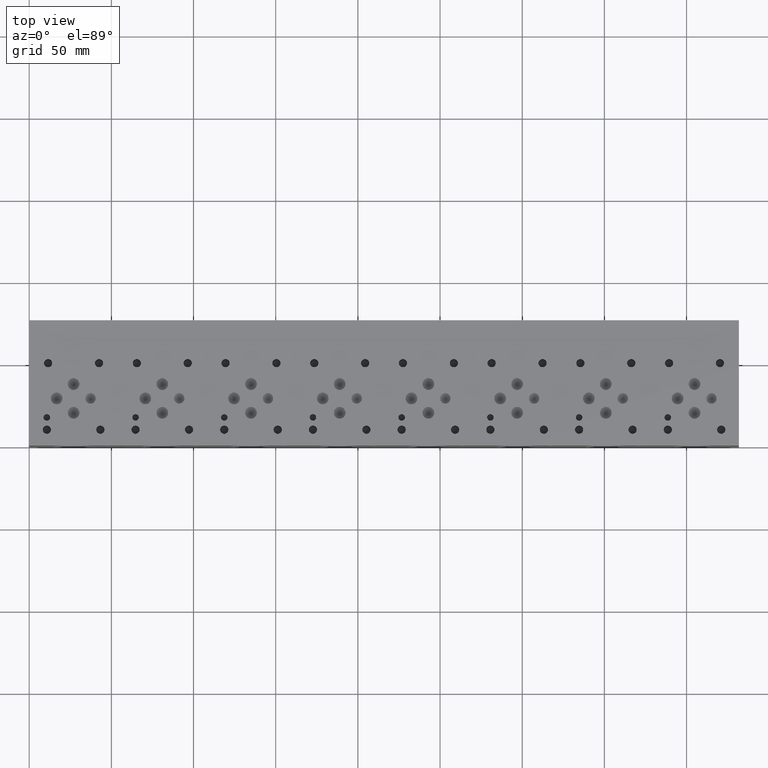
[diagram: clean part render]
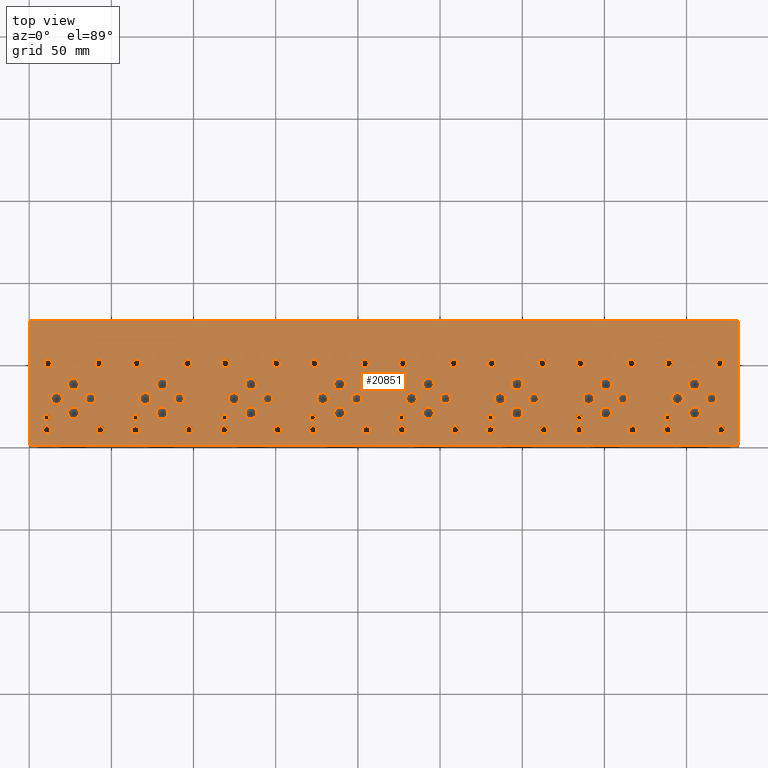
[diagram: same view with one face highlighted and labeled with its STEP entity id]
A machine part, top view. The second image highlights one B-rep face of the part: STEP entity #20851.
In plain terms, the highlighted planar face has unit normal (0, 0, 1).
Its self-contained STEP definition (entity closure, byte-faithful):
#898=CIRCLE('',#21839,2.5019);
#899=CIRCLE('',#21840,2.5019);
#905=CIRCLE('',#21850,2.5019);
#906=CIRCLE('',#21851,2.5019);
#912=CIRCLE('',#21861,2.5019);
#913=CIRCLE('',#21862,2.5019);
#919=CIRCLE('',#21872,2.5019);
#920=CIRCLE('',#21873,2.5019);
#926=CIRCLE('',#21883,2.5019);
#927=CIRCLE('',#21884,2.5019);
#933=CIRCLE('',#21894,2.5019);
#934=CIRCLE('',#21895,2.5019);
#940=CIRCLE('',#21905,2.5019);
#941=CIRCLE('',#21906,2.5019);
#947=CIRCLE('',#21916,2.5019);
#948=CIRCLE('',#21917,2.5019);
#954=CIRCLE('',#21927,2.5019);
#955=CIRCLE('',#21928,2.5019);
#961=CIRCLE('',#21938,2.5019);
#962=CIRCLE('',#21939,2.5019);
#968=CIRCLE('',#21949,2.5019);
#969=CIRCLE('',#21950,2.5019);
#975=CIRCLE('',#21960,2.5019);
#976=CIRCLE('',#21961,2.5019);
#982=CIRCLE('',#21971,2.5019);
#983=CIRCLE('',#21972,2.5019);
#989=CIRCLE('',#21982,2.5019);
#990=CIRCLE('',#21983,2.5019);
#996=CIRCLE('',#21993,2.5019);
#997=CIRCLE('',#21994,2.5019);
#1003=CIRCLE('',#22004,2.5019);
#1004=CIRCLE('',#22005,2.5019);
#1010=CIRCLE('',#22015,2.5019);
#1011=CIRCLE('',#22016,2.5019);
#1017=CIRCLE('',#22026,2.5019);
#1018=CIRCLE('',#22027,2.5019);
#1024=CIRCLE('',#22037,2.5019);
#1025=CIRCLE('',#22038,2.5019);
#1031=CIRCLE('',#22048,2.5019);
#1032=CIRCLE('',#22049,2.5019);
#1038=CIRCLE('',#22059,2.5019);
#1039=CIRCLE('',#22060,2.5019);
#1045=CIRCLE('',#22070,2.5019);
#1046=CIRCLE('',#22071,2.5019);
#1052=CIRCLE('',#22081,2.5019);
#1053=CIRCLE('',#22082,2.5019);
#1059=CIRCLE('',#22092,2.5019);
#1060=CIRCLE('',#22093,2.5019);
#1066=CIRCLE('',#22103,2.5019);
#1067=CIRCLE('',#22104,2.5019);
#1073=CIRCLE('',#22114,2.5019);
#1074=CIRCLE('',#22115,2.5019);
#1080=CIRCLE('',#22125,2.5019);
#1081=CIRCLE('',#22126,2.5019);
#1087=CIRCLE('',#22136,2.5019);
#1088=CIRCLE('',#22137,2.5019);
#1091=CIRCLE('',#22143,3.175);
#1092=CIRCLE('',#22144,3.175);
#1095=CIRCLE('',#22149,3.175);
#1096=CIRCLE('',#22150,3.175);
#1099=CIRCLE('',#22155,3.175);
#1100=CIRCLE('',#22156,3.175);
#1103=CIRCLE('',#22161,3.175);
#1104=CIRCLE('',#22162,3.175);
#1107=CIRCLE('',#22167,3.175);
#1108=CIRCLE('',#22168,3.175);
#1111=CIRCLE('',#22173,3.175);
#1112=CIRCLE('',#22174,3.175);
#1115=CIRCLE('',#22179,3.175);
#1116=CIRCLE('',#22180,3.175);
#1119=CIRCLE('',#22185,3.175);
#1120=CIRCLE('',#22186,3.175);
#1123=CIRCLE('',#22191,3.5687);
#1124=CIRCLE('',#22192,3.5687);
#1127=CIRCLE('',#22197,3.5687);
#1128=CIRCLE('',#22198,3.5687);
#1131=CIRCLE('',#22203,3.5687);
#1132=CIRCLE('',#22204,3.5687);
#1135=CIRCLE('',#22209,3.5687);
#1136=CIRCLE('',#22210,3.5687);
#1139=CIRCLE('',#22215,3.5687);
#1140=CIRCLE('',#22216,3.5687);
#1143=CIRCLE('',#22221,3.5687);
#1144=CIRCLE('',#22222,3.5687);
#1147=CIRCLE('',#22227,3.5687);
#1148=CIRCLE('',#22228,3.5687);
#1151=CIRCLE('',#22233,3.5687);
#1152=CIRCLE('',#22234,3.5687);
#1155=CIRCLE('',#22239,3.5687);
#1156=CIRCLE('',#22240,3.5687);
#1159=CIRCLE('',#22245,3.5687);
#1160=CIRCLE('',#22246,3.5687);
#1163=CIRCLE('',#22251,3.5687);
#1164=CIRCLE('',#22252,3.5687);
#1167=CIRCLE('',#22257,3.5687);
#1168=CIRCLE('',#22258,3.5687);
#1171=CIRCLE('',#22263,3.5687);
#1172=CIRCLE('',#22264,3.5687);
#1175=CIRCLE('',#22269,3.5687);
#1176=CIRCLE('',#22270,3.5687);
#1179=CIRCLE('',#22275,3.5687);
#1180=CIRCLE('',#22276,3.5687);
#1183=CIRCLE('',#22281,3.5687);
#1184=CIRCLE('',#22282,3.5687);
#1187=CIRCLE('',#22287,3.5687);
#1188=CIRCLE('',#22288,3.5687);
#1191=CIRCLE('',#22293,3.5687);
#1192=CIRCLE('',#22294,3.5687);
#1195=CIRCLE('',#22299,3.5687);
#1196=CIRCLE('',#22300,3.5687);
#1199=CIRCLE('',#22305,3.5687);
#1200=CIRCLE('',#22306,3.5687);
#1203=CIRCLE('',#22311,3.5687);
#1204=CIRCLE('',#22312,3.5687);
#1207=CIRCLE('',#22317,3.5687);
#1208=CIRCLE('',#22318,3.5687);
#1211=CIRCLE('',#22323,3.5687);
#1212=CIRCLE('',#22324,3.5687);
#1215=CIRCLE('',#22329,3.5687);
#1216=CIRCLE('',#22330,3.5687);
#1219=CIRCLE('',#22335,1.9812);
#1220=CIRCLE('',#22336,1.9812);
#1223=CIRCLE('',#22341,1.9812);
#1224=CIRCLE('',#22342,1.9812);
#1227=CIRCLE('',#22347,1.9812);
#1228=CIRCLE('',#22348,1.9812);
#1231=CIRCLE('',#22353,1.9812);
#1232=CIRCLE('',#22354,1.9812);
#1235=CIRCLE('',#22359,1.9812);
#1236=CIRCLE('',#22360,1.9812);
#1239=CIRCLE('',#22365,1.9812);
#1240=CIRCLE('',#22366,1.9812);
#1243=CIRCLE('',#22371,1.9812);
#1244=CIRCLE('',#22372,1.9812);
#1247=CIRCLE('',#22377,1.9812);
#1248=CIRCLE('',#22378,1.9812);
#1254=CIRCLE('',#22387,2.5019);
#1255=CIRCLE('',#22388,2.5019);
#1261=CIRCLE('',#22398,2.5019);
#1262=CIRCLE('',#22399,2.5019);
#1268=CIRCLE('',#22409,2.5019);
#1269=CIRCLE('',#22410,2.5019);
#1275=CIRCLE('',#22420,2.5019);
#1276=CIRCLE('',#22421,2.5019);
#1930=FACE_BOUND('',#4346,.T.);
#1931=FACE_BOUND('',#4347,.T.);
#1932=FACE_BOUND('',#4348,.T.);
#1933=FACE_BOUND('',#4349,.T.);
#1934=FACE_BOUND('',#4350,.T.);
#1935=FACE_BOUND('',#4351,.T.);
#1936=FACE_BOUND('',#4352,.T.);
#1937=FACE_BOUND('',#4353,.T.);
#1938=FACE_BOUND('',#4354,.T.);
#1939=FACE_BOUND('',#4355,.T.);
#1940=FACE_BOUND('',#4356,.T.);
#1941=FACE_BOUND('',#4357,.T.);
#1942=FACE_BOUND('',#4358,.T.);
#1943=FACE_BOUND('',#4359,.T.);
#1944=FACE_BOUND('',#4360,.T.);
#1945=FACE_BOUND('',#4361,.T.);
#1946=FACE_BOUND('',#4362,.T.);
#1947=FACE_BOUND('',#4363,.T.);
#1948=FACE_BOUND('',#4364,.T.);
#1949=FACE_BOUND('',#4365,.T.);
#1950=FACE_BOUND('',#4366,.T.);
#1951=FACE_BOUND('',#4367,.T.);
#1952=FACE_BOUND('',#4368,.T.);
#1953=FACE_BOUND('',#4369,.T.);
#1954=FACE_BOUND('',#4370,.T.);
#1955=FACE_BOUND('',#4371,.T.);
#1956=FACE_BOUND('',#4372,.T.);
#1957=FACE_BOUND('',#4373,.T.);
#1958=FACE_BOUND('',#4374,.T.);
#1959=FACE_BOUND('',#4375,.T.);
#1960=FACE_BOUND('',#4376,.T.);
#1961=FACE_BOUND('',#4377,.T.);
#1962=FACE_BOUND('',#4378,.T.);
#1963=FACE_BOUND('',#4379,.T.);
#1964=FACE_BOUND('',#4380,.T.);
#1965=FACE_BOUND('',#4381,.T.);
#1966=FACE_BOUND('',#4382,.T.);
#1967=FACE_BOUND('',#4383,.T.);
#1968=FACE_BOUND('',#4384,.T.);
#1969=FACE_BOUND('',#4385,.T.);
#1970=FACE_BOUND('',#4386,.T.);
#1971=FACE_BOUND('',#4387,.T.);
#1972=FACE_BOUND('',#4388,.T.);
#1973=FACE_BOUND('',#4389,.T.);
#1974=FACE_BOUND('',#4390,.T.);
#1975=FACE_BOUND('',#4391,.T.);
#1976=FACE_BOUND('',#4392,.T.);
#1977=FACE_BOUND('',#4393,.T.);
#1978=FACE_BOUND('',#4394,.T.);
#1979=FACE_BOUND('',#4395,.T.);
#1980=FACE_BOUND('',#4396,.T.);
#1981=FACE_BOUND('',#4397,.T.);
#1982=FACE_BOUND('',#4398,.T.);
#1983=FACE_BOUND('',#4399,.T.);
#1984=FACE_BOUND('',#4400,.T.);
#1985=FACE_BOUND('',#4401,.T.);
#1986=FACE_BOUND('',#4402,.T.);
#1987=FACE_BOUND('',#4403,.T.);
#1988=FACE_BOUND('',#4404,.T.);
#1989=FACE_BOUND('',#4405,.T.);
#1990=FACE_BOUND('',#4406,.T.);
#1991=FACE_BOUND('',#4407,.T.);
#1992=FACE_BOUND('',#4408,.T.);
#1993=FACE_BOUND('',#4409,.T.);
#1994=FACE_BOUND('',#4410,.T.);
#1995=FACE_BOUND('',#4411,.T.);
#1996=FACE_BOUND('',#4412,.T.);
#1997=FACE_BOUND('',#4413,.T.);
#1998=FACE_BOUND('',#4414,.T.);
#1999=FACE_BOUND('',#4415,.T.);
#2000=FACE_BOUND('',#4416,.T.);
#2001=FACE_BOUND('',#4417,.T.);
#3085=FACE_OUTER_BOUND('',#4345,.T.);
#4345=EDGE_LOOP('',(#18419,#18420,#18421,#18422));
#4346=EDGE_LOOP('',(#18423,#18424));
#4347=EDGE_LOOP('',(#18425,#18426));
#4348=EDGE_LOOP('',(#18427,#18428));
#4349=EDGE_LOOP('',(#18429,#18430));
#4350=EDGE_LOOP('',(#18431,#18432));
#4351=EDGE_LOOP('',(#18433,#18434));
#4352=EDGE_LOOP('',(#18435,#18436));
#4353=EDGE_LOOP('',(#18437,#18438));
#4354=EDGE_LOOP('',(#18439,#18440));
#4355=EDGE_LOOP('',(#18441,#18442));
#4356=EDGE_LOOP('',(#18443,#18444));
#4357=EDGE_LOOP('',(#18445,#18446));
#4358=EDGE_LOOP('',(#18447,#18448));
#4359=EDGE_LOOP('',(#18449,#18450));
#4360=EDGE_LOOP('',(#18451,#18452));
#4361=EDGE_LOOP('',(#18453,#18454));
#4362=EDGE_LOOP('',(#18455,#18456));
#4363=EDGE_LOOP('',(#18457,#18458));
#4364=EDGE_LOOP('',(#18459,#18460));
#4365=EDGE_LOOP('',(#18461,#18462));
#4366=EDGE_LOOP('',(#18463,#18464));
#4367=EDGE_LOOP('',(#18465,#18466));
#4368=EDGE_LOOP('',(#18467,#18468));
#4369=EDGE_LOOP('',(#18469,#18470));
#4370=EDGE_LOOP('',(#18471,#18472));
#4371=EDGE_LOOP('',(#18473,#18474));
#4372=EDGE_LOOP('',(#18475,#18476));
#4373=EDGE_LOOP('',(#18477,#18478));
#4374=EDGE_LOOP('',(#18479,#18480));
#4375=EDGE_LOOP('',(#18481,#18482));
#4376=EDGE_LOOP('',(#18483,#18484));
#4377=EDGE_LOOP('',(#18485,#18486));
#4378=EDGE_LOOP('',(#18487,#18488));
#4379=EDGE_LOOP('',(#18489,#18490));
#4380=EDGE_LOOP('',(#18491,#18492));
#4381=EDGE_LOOP('',(#18493,#18494));
#4382=EDGE_LOOP('',(#18495,#18496));
#4383=EDGE_LOOP('',(#18497,#18498));
#4384=EDGE_LOOP('',(#18499,#18500));
#4385=EDGE_LOOP('',(#18501,#18502));
#4386=EDGE_LOOP('',(#18503,#18504));
#4387=EDGE_LOOP('',(#18505,#18506));
#4388=EDGE_LOOP('',(#18507,#18508));
#4389=EDGE_LOOP('',(#18509,#18510));
#4390=EDGE_LOOP('',(#18511,#18512));
#4391=EDGE_LOOP('',(#18513,#18514));
#4392=EDGE_LOOP('',(#18515,#18516));
#4393=EDGE_LOOP('',(#18517,#18518));
#4394=EDGE_LOOP('',(#18519,#18520));
#4395=EDGE_LOOP('',(#18521,#18522));
#4396=EDGE_LOOP('',(#18523,#18524));
#4397=EDGE_LOOP('',(#18525,#18526));
#4398=EDGE_LOOP('',(#18527,#18528));
#4399=EDGE_LOOP('',(#18529,#18530));
#4400=EDGE_LOOP('',(#18531,#18532));
#4401=EDGE_LOOP('',(#18533,#18534));
#4402=EDGE_LOOP('',(#18535,#18536));
#4403=EDGE_LOOP('',(#18537,#18538));
#4404=EDGE_LOOP('',(#18539,#18540));
#4405=EDGE_LOOP('',(#18541,#18542));
#4406=EDGE_LOOP('',(#18543,#18544));
#4407=EDGE_LOOP('',(#18545,#18546));
#4408=EDGE_LOOP('',(#18547,#18548));
#4409=EDGE_LOOP('',(#18549,#18550));
#4410=EDGE_LOOP('',(#18551,#18552));
#4411=EDGE_LOOP('',(#18553,#18554));
#4412=EDGE_LOOP('',(#18555,#18556));
#4413=EDGE_LOOP('',(#18557,#18558));
#4414=EDGE_LOOP('',(#18559,#18560));
#4415=EDGE_LOOP('',(#18561,#18562));
#4416=EDGE_LOOP('',(#18563,#18564));
#4417=EDGE_LOOP('',(#18565,#18566));
#4454=LINE('',#27332,#6156);
#5727=LINE('',#33936,#7429);
#5785=LINE('',#34207,#7487);
#6120=LINE('',#36401,#7822);
#6156=VECTOR('',#22492,10.);
#7429=VECTOR('',#24659,10.);
#7487=VECTOR('',#24771,10.);
#7822=VECTOR('',#27248,10.);
#7847=VERTEX_POINT('',#27329);
#7848=VERTEX_POINT('',#27331);
#9036=VERTEX_POINT('',#33934);
#9094=VERTEX_POINT('',#34206);
#9433=VERTEX_POINT('',#35189);
#9434=VERTEX_POINT('',#35190);
#9441=VERTEX_POINT('',#35211);
#9442=VERTEX_POINT('',#35212);
#9449=VERTEX_POINT('',#35233);
#9450=VERTEX_POINT('',#35234);
#9457=VERTEX_POINT('',#35255);
#9458=VERTEX_POINT('',#35256);
#9465=VERTEX_POINT('',#35277);
#9466=VERTEX_POINT('',#35278);
#9473=VERTEX_POINT('',#35299);
#9474=VERTEX_POINT('',#35300);
#9481=VERTEX_POINT('',#35321);
#9482=VERTEX_POINT('',#35322);
#9489=VERTEX_POINT('',#35343);
#9490=VERTEX_POINT('',#35344);
#9497=VERTEX_POINT('',#35365);
#9498=VERTEX_POINT('',#35366);
#9505=VERTEX_POINT('',#35387);
#9506=VERTEX_POINT('',#35388);
#9513=VERTEX_POINT('',#35409);
#9514=VERTEX_POINT('',#35410);
#9521=VERTEX_POINT('',#35431);
#9522=VERTEX_POINT('',#35432);
#9529=VERTEX_POINT('',#35453);
#9530=VERTEX_POINT('',#35454);
#9537=VERTEX_POINT('',#35475);
#9538=VERTEX_POINT('',#35476);
#9545=VERTEX_POINT('',#35497);
#9546=VERTEX_POINT('',#35498);
#9553=VERTEX_POINT('',#35519);
#9554=VERTEX_POINT('',#35520);
#9561=VERTEX_POINT('',#35541);
#9562=VERTEX_POINT('',#35542);
#9569=VERTEX_POINT('',#35563);
#9570=VERTEX_POINT('',#35564);
#9577=VERTEX_POINT('',#35585);
#9578=VERTEX_POINT('',#35586);
#9585=VERTEX_POINT('',#35607);
#9586=VERTEX_POINT('',#35608);
#9593=VERTEX_POINT('',#35629);
#9594=VERTEX_POINT('',#35630);
#9601=VERTEX_POINT('',#35651);
#9602=VERTEX_POINT('',#35652);
#9609=VERTEX_POINT('',#35673);
#9610=VERTEX_POINT('',#35674);
#9617=VERTEX_POINT('',#35695);
#9618=VERTEX_POINT('',#35696);
#9625=VERTEX_POINT('',#35717);
#9626=VERTEX_POINT('',#35718);
#9633=VERTEX_POINT('',#35739);
#9634=VERTEX_POINT('',#35740);
#9641=VERTEX_POINT('',#35761);
#9642=VERTEX_POINT('',#35762);
#9649=VERTEX_POINT('',#35783);
#9650=VERTEX_POINT('',#35784);
#9654=VERTEX_POINT('',#35798);
#9655=VERTEX_POINT('',#35799);
#9659=VERTEX_POINT('',#35811);
#9660=VERTEX_POINT('',#35812);
#9664=VERTEX_POINT('',#35824);
#9665=VERTEX_POINT('',#35825);
#9669=VERTEX_POINT('',#35837);
#9670=VERTEX_POINT('',#35838);
#9674=VERTEX_POINT('',#35850);
#9675=VERTEX_POINT('',#35851);
#9679=VERTEX_POINT('',#35863);
#9680=VERTEX_POINT('',#35864);
#9684=VERTEX_POINT('',#35876);
#9685=VERTEX_POINT('',#35877);
#9689=VERTEX_POINT('',#35889);
#9690=VERTEX_POINT('',#35890);
#9694=VERTEX_POINT('',#35902);
#9695=VERTEX_POINT('',#35903);
#9699=VERTEX_POINT('',#35915);
#9700=VERTEX_POINT('',#35916);
#9704=VERTEX_POINT('',#35928);
#9705=VERTEX_POINT('',#35929);
#9709=VERTEX_POINT('',#35941);
#9710=VERTEX_POINT('',#35942);
#9714=VERTEX_POINT('',#35954);
#9715=VERTEX_POINT('',#35955);
#9719=VERTEX_POINT('',#35967);
#9720=VERTEX_POINT('',#35968);
#9724=VERTEX_POINT('',#35980);
#9725=VERTEX_POINT('',#35981);
#9729=VERTEX_POINT('',#35993);
#9730=VERTEX_POINT('',#35994);
#9734=VERTEX_POINT('',#36006);
#9735=VERTEX_POINT('',#36007);
#9739=VERTEX_POINT('',#36019);
#9740=VERTEX_POINT('',#36020);
#9744=VERTEX_POINT('',#36032);
#9745=VERTEX_POINT('',#36033);
#9749=VERTEX_POINT('',#36045);
#9750=VERTEX_POINT('',#36046);
#9754=VERTEX_POINT('',#36058);
#9755=VERTEX_POINT('',#36059);
#9759=VERTEX_POINT('',#36071);
#9760=VERTEX_POINT('',#36072);
#9764=VERTEX_POINT('',#36084);
#9765=VERTEX_POINT('',#36085);
#9769=VERTEX_POINT('',#36097);
#9770=VERTEX_POINT('',#36098);
#9774=VERTEX_POINT('',#36110);
#9775=VERTEX_POINT('',#36111);
#9779=VERTEX_POINT('',#36123);
#9780=VERTEX_POINT('',#36124);
#9784=VERTEX_POINT('',#36136);
#9785=VERTEX_POINT('',#36137);
#9789=VERTEX_POINT('',#36149);
#9790=VERTEX_POINT('',#36150);
#9794=VERTEX_POINT('',#36162);
#9795=VERTEX_POINT('',#36163);
#9799=VERTEX_POINT('',#36175);
#9800=VERTEX_POINT('',#36176);
#9804=VERTEX_POINT('',#36188);
#9805=VERTEX_POINT('',#36189);
#9809=VERTEX_POINT('',#36201);
#9810=VERTEX_POINT('',#36202);
#9814=VERTEX_POINT('',#36214);
#9815=VERTEX_POINT('',#36215);
#9819=VERTEX_POINT('',#36227);
#9820=VERTEX_POINT('',#36228);
#9824=VERTEX_POINT('',#36240);
#9825=VERTEX_POINT('',#36241);
#9829=VERTEX_POINT('',#36253);
#9830=VERTEX_POINT('',#36254);
#9834=VERTEX_POINT('',#36266);
#9835=VERTEX_POINT('',#36267);
#9839=VERTEX_POINT('',#36279);
#9840=VERTEX_POINT('',#36280);
#9844=VERTEX_POINT('',#36292);
#9845=VERTEX_POINT('',#36293);
#9849=VERTEX_POINT('',#36305);
#9850=VERTEX_POINT('',#36306);
#9857=VERTEX_POINT('',#36325);
#9858=VERTEX_POINT('',#36326);
#9865=VERTEX_POINT('',#36347);
#9866=VERTEX_POINT('',#36348);
#9873=VERTEX_POINT('',#36369);
#9874=VERTEX_POINT('',#36370);
#9881=VERTEX_POINT('',#36391);
#9882=VERTEX_POINT('',#36392);
#9918=EDGE_CURVE('',#7848,#7847,#4454,.T.);
#11685=EDGE_CURVE('',#7847,#9036,#5727,.T.);
#11767=EDGE_CURVE('',#9094,#7848,#5785,.T.);
#12223=EDGE_CURVE('',#9433,#9434,#898,.T.);
#12224=EDGE_CURVE('',#9434,#9433,#899,.T.);
#12233=EDGE_CURVE('',#9441,#9442,#905,.T.);
#12234=EDGE_CURVE('',#9442,#9441,#906,.T.);
#12243=EDGE_CURVE('',#9449,#9450,#912,.T.);
#12244=EDGE_CURVE('',#9450,#9449,#913,.T.);
#12253=EDGE_CURVE('',#9457,#9458,#919,.T.);
#12254=EDGE_CURVE('',#9458,#9457,#920,.T.);
#12263=EDGE_CURVE('',#9465,#9466,#926,.T.);
#12264=EDGE_CURVE('',#9466,#9465,#927,.T.);
#12273=EDGE_CURVE('',#9473,#9474,#933,.T.);
#12274=EDGE_CURVE('',#9474,#9473,#934,.T.);
#12283=EDGE_CURVE('',#9481,#9482,#940,.T.);
#12284=EDGE_CURVE('',#9482,#9481,#941,.T.);
#12293=EDGE_CURVE('',#9489,#9490,#947,.T.);
#12294=EDGE_CURVE('',#9490,#9489,#948,.T.);
#12303=EDGE_CURVE('',#9497,#9498,#954,.T.);
#12304=EDGE_CURVE('',#9498,#9497,#955,.T.);
#12313=EDGE_CURVE('',#9505,#9506,#961,.T.);
#12314=EDGE_CURVE('',#9506,#9505,#962,.T.);
#12323=EDGE_CURVE('',#9513,#9514,#968,.T.);
#12324=EDGE_CURVE('',#9514,#9513,#969,.T.);
#12333=EDGE_CURVE('',#9521,#9522,#975,.T.);
#12334=EDGE_CURVE('',#9522,#9521,#976,.T.);
#12343=EDGE_CURVE('',#9529,#9530,#982,.T.);
#12344=EDGE_CURVE('',#9530,#9529,#983,.T.);
#12353=EDGE_CURVE('',#9537,#9538,#989,.T.);
#12354=EDGE_CURVE('',#9538,#9537,#990,.T.);
#12363=EDGE_CURVE('',#9545,#9546,#996,.T.);
#12364=EDGE_CURVE('',#9546,#9545,#997,.T.);
#12373=EDGE_CURVE('',#9553,#9554,#1003,.T.);
#12374=EDGE_CURVE('',#9554,#9553,#1004,.T.);
#12383=EDGE_CURVE('',#9561,#9562,#1010,.T.);
#12384=EDGE_CURVE('',#9562,#9561,#1011,.T.);
#12393=EDGE_CURVE('',#9569,#9570,#1017,.T.);
#12394=EDGE_CURVE('',#9570,#9569,#1018,.T.);
#12403=EDGE_CURVE('',#9577,#9578,#1024,.T.);
#12404=EDGE_CURVE('',#9578,#9577,#1025,.T.);
#12413=EDGE_CURVE('',#9585,#9586,#1031,.T.);
#12414=EDGE_CURVE('',#9586,#9585,#1032,.T.);
#12423=EDGE_CURVE('',#9593,#9594,#1038,.T.);
#12424=EDGE_CURVE('',#9594,#9593,#1039,.T.);
#12433=EDGE_CURVE('',#9601,#9602,#1045,.T.);
#12434=EDGE_CURVE('',#9602,#9601,#1046,.T.);
#12443=EDGE_CURVE('',#9609,#9610,#1052,.T.);
#12444=EDGE_CURVE('',#9610,#9609,#1053,.T.);
#12453=EDGE_CURVE('',#9617,#9618,#1059,.T.);
#12454=EDGE_CURVE('',#9618,#9617,#1060,.T.);
#12463=EDGE_CURVE('',#9625,#9626,#1066,.T.);
#12464=EDGE_CURVE('',#9626,#9625,#1067,.T.);
#12473=EDGE_CURVE('',#9633,#9634,#1073,.T.);
#12474=EDGE_CURVE('',#9634,#9633,#1074,.T.);
#12483=EDGE_CURVE('',#9641,#9642,#1080,.T.);
#12484=EDGE_CURVE('',#9642,#9641,#1081,.T.);
#12493=EDGE_CURVE('',#9649,#9650,#1087,.T.);
#12494=EDGE_CURVE('',#9650,#9649,#1088,.T.);
#12500=EDGE_CURVE('',#9654,#9655,#1091,.T.);
#12501=EDGE_CURVE('',#9655,#9654,#1092,.T.);
#12506=EDGE_CURVE('',#9659,#9660,#1095,.T.);
#12507=EDGE_CURVE('',#9660,#9659,#1096,.T.);
#12512=EDGE_CURVE('',#9664,#9665,#1099,.T.);
#12513=EDGE_CURVE('',#9665,#9664,#1100,.T.);
#12518=EDGE_CURVE('',#9669,#9670,#1103,.T.);
#12519=EDGE_CURVE('',#9670,#9669,#1104,.T.);
#12524=EDGE_CURVE('',#9674,#9675,#1107,.T.);
#12525=EDGE_CURVE('',#9675,#9674,#1108,.T.);
#12530=EDGE_CURVE('',#9679,#9680,#1111,.T.);
#12531=EDGE_CURVE('',#9680,#9679,#1112,.T.);
#12536=EDGE_CURVE('',#9684,#9685,#1115,.T.);
#12537=EDGE_CURVE('',#9685,#9684,#1116,.T.);
#12542=EDGE_CURVE('',#9689,#9690,#1119,.T.);
#12543=EDGE_CURVE('',#9690,#9689,#1120,.T.);
#12548=EDGE_CURVE('',#9694,#9695,#1123,.T.);
#12549=EDGE_CURVE('',#9695,#9694,#1124,.T.);
#12554=EDGE_CURVE('',#9699,#9700,#1127,.T.);
#12555=EDGE_CURVE('',#9700,#9699,#1128,.T.);
#12560=EDGE_CURVE('',#9704,#9705,#1131,.T.);
#12561=EDGE_CURVE('',#9705,#9704,#1132,.T.);
#12566=EDGE_CURVE('',#9709,#9710,#1135,.T.);
#12567=EDGE_CURVE('',#9710,#9709,#1136,.T.);
#12572=EDGE_CURVE('',#9714,#9715,#1139,.T.);
#12573=EDGE_CURVE('',#9715,#9714,#1140,.T.);
#12578=EDGE_CURVE('',#9719,#9720,#1143,.T.);
#12579=EDGE_CURVE('',#9720,#9719,#1144,.T.);
#12584=EDGE_CURVE('',#9724,#9725,#1147,.T.);
#12585=EDGE_CURVE('',#9725,#9724,#1148,.T.);
#12590=EDGE_CURVE('',#9729,#9730,#1151,.T.);
#12591=EDGE_CURVE('',#9730,#9729,#1152,.T.);
#12596=EDGE_CURVE('',#9734,#9735,#1155,.T.);
#12597=EDGE_CURVE('',#9735,#9734,#1156,.T.);
#12602=EDGE_CURVE('',#9739,#9740,#1159,.T.);
#12603=EDGE_CURVE('',#9740,#9739,#1160,.T.);
#12608=EDGE_CURVE('',#9744,#9745,#1163,.T.);
#12609=EDGE_CURVE('',#9745,#9744,#1164,.T.);
#12614=EDGE_CURVE('',#9749,#9750,#1167,.T.);
#12615=EDGE_CURVE('',#9750,#9749,#1168,.T.);
#12620=EDGE_CURVE('',#9754,#9755,#1171,.T.);
#12621=EDGE_CURVE('',#9755,#9754,#1172,.T.);
#12626=EDGE_CURVE('',#9759,#9760,#1175,.T.);
#12627=EDGE_CURVE('',#9760,#9759,#1176,.T.);
#12632=EDGE_CURVE('',#9764,#9765,#1179,.T.);
#12633=EDGE_CURVE('',#9765,#9764,#1180,.T.);
#12638=EDGE_CURVE('',#9769,#9770,#1183,.T.);
#12639=EDGE_CURVE('',#9770,#9769,#1184,.T.);
#12644=EDGE_CURVE('',#9774,#9775,#1187,.T.);
#12645=EDGE_CURVE('',#9775,#9774,#1188,.T.);
#12650=EDGE_CURVE('',#9779,#9780,#1191,.T.);
#12651=EDGE_CURVE('',#9780,#9779,#1192,.T.);
#12656=EDGE_CURVE('',#9784,#9785,#1195,.T.);
#12657=EDGE_CURVE('',#9785,#9784,#1196,.T.);
#12662=EDGE_CURVE('',#9789,#9790,#1199,.T.);
#12663=EDGE_CURVE('',#9790,#9789,#1200,.T.);
#12668=EDGE_CURVE('',#9794,#9795,#1203,.T.);
#12669=EDGE_CURVE('',#9795,#9794,#1204,.T.);
#12674=EDGE_CURVE('',#9799,#9800,#1207,.T.);
#12675=EDGE_CURVE('',#9800,#9799,#1208,.T.);
#12680=EDGE_CURVE('',#9804,#9805,#1211,.T.);
#12681=EDGE_CURVE('',#9805,#9804,#1212,.T.);
#12686=EDGE_CURVE('',#9809,#9810,#1215,.T.);
#12687=EDGE_CURVE('',#9810,#9809,#1216,.T.);
#12692=EDGE_CURVE('',#9814,#9815,#1219,.T.);
#12693=EDGE_CURVE('',#9815,#9814,#1220,.T.);
#12698=EDGE_CURVE('',#9819,#9820,#1223,.T.);
#12699=EDGE_CURVE('',#9820,#9819,#1224,.T.);
#12704=EDGE_CURVE('',#9824,#9825,#1227,.T.);
#12705=EDGE_CURVE('',#9825,#9824,#1228,.T.);
#12710=EDGE_CURVE('',#9829,#9830,#1231,.T.);
#12711=EDGE_CURVE('',#9830,#9829,#1232,.T.);
#12716=EDGE_CURVE('',#9834,#9835,#1235,.T.);
#12717=EDGE_CURVE('',#9835,#9834,#1236,.T.);
#12722=EDGE_CURVE('',#9839,#9840,#1239,.T.);
#12723=EDGE_CURVE('',#9840,#9839,#1240,.T.);
#12728=EDGE_CURVE('',#9844,#9845,#1243,.T.);
#12729=EDGE_CURVE('',#9845,#9844,#1244,.T.);
#12734=EDGE_CURVE('',#9849,#9850,#1247,.T.);
#12735=EDGE_CURVE('',#9850,#9849,#1248,.T.);
#12743=EDGE_CURVE('',#9857,#9858,#1254,.T.);
#12744=EDGE_CURVE('',#9858,#9857,#1255,.T.);
#12753=EDGE_CURVE('',#9865,#9866,#1261,.T.);
#12754=EDGE_CURVE('',#9866,#9865,#1262,.T.);
#12763=EDGE_CURVE('',#9873,#9874,#1268,.T.);
#12764=EDGE_CURVE('',#9874,#9873,#1269,.T.);
#12773=EDGE_CURVE('',#9881,#9882,#1275,.T.);
#12774=EDGE_CURVE('',#9882,#9881,#1276,.T.);
#12778=EDGE_CURVE('',#9036,#9094,#6120,.T.);
#18419=ORIENTED_EDGE('',*,*,#9918,.T.);
#18420=ORIENTED_EDGE('',*,*,#11685,.T.);
#18421=ORIENTED_EDGE('',*,*,#12778,.T.);
#18422=ORIENTED_EDGE('',*,*,#11767,.T.);
#18423=ORIENTED_EDGE('',*,*,#12223,.T.);
#18424=ORIENTED_EDGE('',*,*,#12224,.T.);
#18425=ORIENTED_EDGE('',*,*,#12233,.T.);
#18426=ORIENTED_EDGE('',*,*,#12234,.T.);
#18427=ORIENTED_EDGE('',*,*,#12243,.T.);
#18428=ORIENTED_EDGE('',*,*,#12244,.T.);
#18429=ORIENTED_EDGE('',*,*,#12253,.T.);
#18430=ORIENTED_EDGE('',*,*,#12254,.T.);
#18431=ORIENTED_EDGE('',*,*,#12263,.T.);
#18432=ORIENTED_EDGE('',*,*,#12264,.T.);
#18433=ORIENTED_EDGE('',*,*,#12273,.T.);
#18434=ORIENTED_EDGE('',*,*,#12274,.T.);
#18435=ORIENTED_EDGE('',*,*,#12283,.T.);
#18436=ORIENTED_EDGE('',*,*,#12284,.T.);
#18437=ORIENTED_EDGE('',*,*,#12293,.T.);
#18438=ORIENTED_EDGE('',*,*,#12294,.T.);
#18439=ORIENTED_EDGE('',*,*,#12303,.T.);
#18440=ORIENTED_EDGE('',*,*,#12304,.T.);
#18441=ORIENTED_EDGE('',*,*,#12313,.T.);
#18442=ORIENTED_EDGE('',*,*,#12314,.T.);
#18443=ORIENTED_EDGE('',*,*,#12323,.T.);
#18444=ORIENTED_EDGE('',*,*,#12324,.T.);
#18445=ORIENTED_EDGE('',*,*,#12333,.T.);
#18446=ORIENTED_EDGE('',*,*,#12334,.T.);
#18447=ORIENTED_EDGE('',*,*,#12343,.T.);
#18448=ORIENTED_EDGE('',*,*,#12344,.T.);
#18449=ORIENTED_EDGE('',*,*,#12353,.T.);
#18450=ORIENTED_EDGE('',*,*,#12354,.T.);
#18451=ORIENTED_EDGE('',*,*,#12363,.T.);
#18452=ORIENTED_EDGE('',*,*,#12364,.T.);
#18453=ORIENTED_EDGE('',*,*,#12373,.T.);
#18454=ORIENTED_EDGE('',*,*,#12374,.T.);
#18455=ORIENTED_EDGE('',*,*,#12383,.T.);
#18456=ORIENTED_EDGE('',*,*,#12384,.T.);
#18457=ORIENTED_EDGE('',*,*,#12393,.T.);
#18458=ORIENTED_EDGE('',*,*,#12394,.T.);
#18459=ORIENTED_EDGE('',*,*,#12403,.T.);
#18460=ORIENTED_EDGE('',*,*,#12404,.T.);
#18461=ORIENTED_EDGE('',*,*,#12413,.T.);
#18462=ORIENTED_EDGE('',*,*,#12414,.T.);
#18463=ORIENTED_EDGE('',*,*,#12423,.T.);
#18464=ORIENTED_EDGE('',*,*,#12424,.T.);
#18465=ORIENTED_EDGE('',*,*,#12433,.T.);
#18466=ORIENTED_EDGE('',*,*,#12434,.T.);
#18467=ORIENTED_EDGE('',*,*,#12443,.T.);
#18468=ORIENTED_EDGE('',*,*,#12444,.T.);
#18469=ORIENTED_EDGE('',*,*,#12453,.T.);
#18470=ORIENTED_EDGE('',*,*,#12454,.T.);
#18471=ORIENTED_EDGE('',*,*,#12463,.T.);
#18472=ORIENTED_EDGE('',*,*,#12464,.T.);
#18473=ORIENTED_EDGE('',*,*,#12473,.T.);
#18474=ORIENTED_EDGE('',*,*,#12474,.T.);
#18475=ORIENTED_EDGE('',*,*,#12483,.T.);
#18476=ORIENTED_EDGE('',*,*,#12484,.T.);
#18477=ORIENTED_EDGE('',*,*,#12493,.T.);
#18478=ORIENTED_EDGE('',*,*,#12494,.T.);
#18479=ORIENTED_EDGE('',*,*,#12500,.T.);
#18480=ORIENTED_EDGE('',*,*,#12501,.T.);
#18481=ORIENTED_EDGE('',*,*,#12506,.T.);
#18482=ORIENTED_EDGE('',*,*,#12507,.T.);
#18483=ORIENTED_EDGE('',*,*,#12512,.T.);
#18484=ORIENTED_EDGE('',*,*,#12513,.T.);
#18485=ORIENTED_EDGE('',*,*,#12518,.T.);
#18486=ORIENTED_EDGE('',*,*,#12519,.T.);
#18487=ORIENTED_EDGE('',*,*,#12524,.T.);
#18488=ORIENTED_EDGE('',*,*,#12525,.T.);
#18489=ORIENTED_EDGE('',*,*,#12530,.T.);
#18490=ORIENTED_EDGE('',*,*,#12531,.T.);
#18491=ORIENTED_EDGE('',*,*,#12536,.T.);
#18492=ORIENTED_EDGE('',*,*,#12537,.T.);
#18493=ORIENTED_EDGE('',*,*,#12542,.T.);
#18494=ORIENTED_EDGE('',*,*,#12543,.T.);
#18495=ORIENTED_EDGE('',*,*,#12548,.T.);
#18496=ORIENTED_EDGE('',*,*,#12549,.T.);
#18497=ORIENTED_EDGE('',*,*,#12554,.T.);
#18498=ORIENTED_EDGE('',*,*,#12555,.T.);
#18499=ORIENTED_EDGE('',*,*,#12560,.T.);
#18500=ORIENTED_EDGE('',*,*,#12561,.T.);
#18501=ORIENTED_EDGE('',*,*,#12566,.T.);
#18502=ORIENTED_EDGE('',*,*,#12567,.T.);
#18503=ORIENTED_EDGE('',*,*,#12572,.T.);
#18504=ORIENTED_EDGE('',*,*,#12573,.T.);
#18505=ORIENTED_EDGE('',*,*,#12578,.T.);
#18506=ORIENTED_EDGE('',*,*,#12579,.T.);
#18507=ORIENTED_EDGE('',*,*,#12584,.T.);
#18508=ORIENTED_EDGE('',*,*,#12585,.T.);
#18509=ORIENTED_EDGE('',*,*,#12590,.T.);
#18510=ORIENTED_EDGE('',*,*,#12591,.T.);
#18511=ORIENTED_EDGE('',*,*,#12596,.T.);
#18512=ORIENTED_EDGE('',*,*,#12597,.T.);
#18513=ORIENTED_EDGE('',*,*,#12602,.T.);
#18514=ORIENTED_EDGE('',*,*,#12603,.T.);
#18515=ORIENTED_EDGE('',*,*,#12608,.T.);
#18516=ORIENTED_EDGE('',*,*,#12609,.T.);
#18517=ORIENTED_EDGE('',*,*,#12614,.T.);
#18518=ORIENTED_EDGE('',*,*,#12615,.T.);
#18519=ORIENTED_EDGE('',*,*,#12620,.T.);
#18520=ORIENTED_EDGE('',*,*,#12621,.T.);
#18521=ORIENTED_EDGE('',*,*,#12626,.T.);
#18522=ORIENTED_EDGE('',*,*,#12627,.T.);
#18523=ORIENTED_EDGE('',*,*,#12632,.T.);
#18524=ORIENTED_EDGE('',*,*,#12633,.T.);
#18525=ORIENTED_EDGE('',*,*,#12638,.T.);
#18526=ORIENTED_EDGE('',*,*,#12639,.T.);
#18527=ORIENTED_EDGE('',*,*,#12644,.T.);
#18528=ORIENTED_EDGE('',*,*,#12645,.T.);
#18529=ORIENTED_EDGE('',*,*,#12650,.T.);
#18530=ORIENTED_EDGE('',*,*,#12651,.T.);
#18531=ORIENTED_EDGE('',*,*,#12656,.T.);
#18532=ORIENTED_EDGE('',*,*,#12657,.T.);
#18533=ORIENTED_EDGE('',*,*,#12662,.T.);
#18534=ORIENTED_EDGE('',*,*,#12663,.T.);
#18535=ORIENTED_EDGE('',*,*,#12668,.T.);
#18536=ORIENTED_EDGE('',*,*,#12669,.T.);
#18537=ORIENTED_EDGE('',*,*,#12674,.T.);
#18538=ORIENTED_EDGE('',*,*,#12675,.T.);
#18539=ORIENTED_EDGE('',*,*,#12680,.T.);
#18540=ORIENTED_EDGE('',*,*,#12681,.T.);
#18541=ORIENTED_EDGE('',*,*,#12686,.T.);
#18542=ORIENTED_EDGE('',*,*,#12687,.T.);
#18543=ORIENTED_EDGE('',*,*,#12692,.T.);
#18544=ORIENTED_EDGE('',*,*,#12693,.T.);
#18545=ORIENTED_EDGE('',*,*,#12698,.T.);
#18546=ORIENTED_EDGE('',*,*,#12699,.T.);
#18547=ORIENTED_EDGE('',*,*,#12704,.T.);
#18548=ORIENTED_EDGE('',*,*,#12705,.T.);
#18549=ORIENTED_EDGE('',*,*,#12710,.T.);
#18550=ORIENTED_EDGE('',*,*,#12711,.T.);
#18551=ORIENTED_EDGE('',*,*,#12716,.T.);
#18552=ORIENTED_EDGE('',*,*,#12717,.T.);
#18553=ORIENTED_EDGE('',*,*,#12722,.T.);
#18554=ORIENTED_EDGE('',*,*,#12723,.T.);
#18555=ORIENTED_EDGE('',*,*,#12728,.T.);
#18556=ORIENTED_EDGE('',*,*,#12729,.T.);
#18557=ORIENTED_EDGE('',*,*,#12734,.T.);
#18558=ORIENTED_EDGE('',*,*,#12735,.T.);
#18559=ORIENTED_EDGE('',*,*,#12743,.T.);
#18560=ORIENTED_EDGE('',*,*,#12744,.T.);
#18561=ORIENTED_EDGE('',*,*,#12753,.T.);
#18562=ORIENTED_EDGE('',*,*,#12754,.T.);
#18563=ORIENTED_EDGE('',*,*,#12763,.T.);
#18564=ORIENTED_EDGE('',*,*,#12764,.T.);
#18565=ORIENTED_EDGE('',*,*,#12773,.T.);
#18566=ORIENTED_EDGE('',*,*,#12774,.T.);
#19107=PLANE('',#22427);
#20851=ADVANCED_FACE('',(#3085,#1930,#1931,#1932,#1933,#1934,#1935,#1936,
#1937,#1938,#1939,#1940,#1941,#1942,#1943,#1944,#1945,#1946,#1947,#1948,
#1949,#1950,#1951,#1952,#1953,#1954,#1955,#1956,#1957,#1958,#1959,#1960,
#1961,#1962,#1963,#1964,#1965,#1966,#1967,#1968,#1969,#1970,#1971,#1972,
#1973,#1974,#1975,#1976,#1977,#1978,#1979,#1980,#1981,#1982,#1983,#1984,
#1985,#1986,#1987,#1988,#1989,#1990,#1991,#1992,#1993,#1994,#1995,#1996,
#1997,#1998,#1999,#2000,#2001),#19107,.T.);
#21839=AXIS2_PLACEMENT_3D('',#35191,#25900,#25901);
#21840=AXIS2_PLACEMENT_3D('',#35192,#25902,#25903);
#21850=AXIS2_PLACEMENT_3D('',#35213,#25925,#25926);
#21851=AXIS2_PLACEMENT_3D('',#35214,#25927,#25928);
#21861=AXIS2_PLACEMENT_3D('',#35235,#25950,#25951);
#21862=AXIS2_PLACEMENT_3D('',#35236,#25952,#25953);
#21872=AXIS2_PLACEMENT_3D('',#35257,#25975,#25976);
#21873=AXIS2_PLACEMENT_3D('',#35258,#25977,#25978);
#21883=AXIS2_PLACEMENT_3D('',#35279,#26000,#26001);
#21884=AXIS2_PLACEMENT_3D('',#35280,#26002,#26003);
#21894=AXIS2_PLACEMENT_3D('',#35301,#26025,#26026);
#21895=AXIS2_PLACEMENT_3D('',#35302,#26027,#26028);
#21905=AXIS2_PLACEMENT_3D('',#35323,#26050,#26051);
#21906=AXIS2_PLACEMENT_3D('',#35324,#26052,#26053);
#21916=AXIS2_PLACEMENT_3D('',#35345,#26075,#26076);
#21917=AXIS2_PLACEMENT_3D('',#35346,#26077,#26078);
#21927=AXIS2_PLACEMENT_3D('',#35367,#26100,#26101);
#21928=AXIS2_PLACEMENT_3D('',#35368,#26102,#26103);
#21938=AXIS2_PLACEMENT_3D('',#35389,#26125,#26126);
#21939=AXIS2_PLACEMENT_3D('',#35390,#26127,#26128);
#21949=AXIS2_PLACEMENT_3D('',#35411,#26150,#26151);
#21950=AXIS2_PLACEMENT_3D('',#35412,#26152,#26153);
#21960=AXIS2_PLACEMENT_3D('',#35433,#26175,#26176);
#21961=AXIS2_PLACEMENT_3D('',#35434,#26177,#26178);
#21971=AXIS2_PLACEMENT_3D('',#35455,#26200,#26201);
#21972=AXIS2_PLACEMENT_3D('',#35456,#26202,#26203);
#21982=AXIS2_PLACEMENT_3D('',#35477,#26225,#26226);
#21983=AXIS2_PLACEMENT_3D('',#35478,#26227,#26228);
#21993=AXIS2_PLACEMENT_3D('',#35499,#26250,#26251);
#21994=AXIS2_PLACEMENT_3D('',#35500,#26252,#26253);
#22004=AXIS2_PLACEMENT_3D('',#35521,#26275,#26276);
#22005=AXIS2_PLACEMENT_3D('',#35522,#26277,#26278);
#22015=AXIS2_PLACEMENT_3D('',#35543,#26300,#26301);
#22016=AXIS2_PLACEMENT_3D('',#35544,#26302,#26303);
#22026=AXIS2_PLACEMENT_3D('',#35565,#26325,#26326);
#22027=AXIS2_PLACEMENT_3D('',#35566,#26327,#26328);
#22037=AXIS2_PLACEMENT_3D('',#35587,#26350,#26351);
#22038=AXIS2_PLACEMENT_3D('',#35588,#26352,#26353);
#22048=AXIS2_PLACEMENT_3D('',#35609,#26375,#26376);
#22049=AXIS2_PLACEMENT_3D('',#35610,#26377,#26378);
#22059=AXIS2_PLACEMENT_3D('',#35631,#26400,#26401);
#22060=AXIS2_PLACEMENT_3D('',#35632,#26402,#26403);
#22070=AXIS2_PLACEMENT_3D('',#35653,#26425,#26426);
#22071=AXIS2_PLACEMENT_3D('',#35654,#26427,#26428);
#22081=AXIS2_PLACEMENT_3D('',#35675,#26450,#26451);
#22082=AXIS2_PLACEMENT_3D('',#35676,#26452,#26453);
#22092=AXIS2_PLACEMENT_3D('',#35697,#26475,#26476);
#22093=AXIS2_PLACEMENT_3D('',#35698,#26477,#26478);
#22103=AXIS2_PLACEMENT_3D('',#35719,#26500,#26501);
#22104=AXIS2_PLACEMENT_3D('',#35720,#26502,#26503);
#22114=AXIS2_PLACEMENT_3D('',#35741,#26525,#26526);
#22115=AXIS2_PLACEMENT_3D('',#35742,#26527,#26528);
#22125=AXIS2_PLACEMENT_3D('',#35763,#26550,#26551);
#22126=AXIS2_PLACEMENT_3D('',#35764,#26552,#26553);
#22136=AXIS2_PLACEMENT_3D('',#35785,#26575,#26576);
#22137=AXIS2_PLACEMENT_3D('',#35786,#26577,#26578);
#22143=AXIS2_PLACEMENT_3D('',#35800,#26592,#26593);
#22144=AXIS2_PLACEMENT_3D('',#35801,#26594,#26595);
#22149=AXIS2_PLACEMENT_3D('',#35813,#26606,#26607);
#22150=AXIS2_PLACEMENT_3D('',#35814,#26608,#26609);
#22155=AXIS2_PLACEMENT_3D('',#35826,#26620,#26621);
#22156=AXIS2_PLACEMENT_3D('',#35827,#26622,#26623);
#22161=AXIS2_PLACEMENT_3D('',#35839,#26634,#26635);
#22162=AXIS2_PLACEMENT_3D('',#35840,#26636,#26637);
#22167=AXIS2_PLACEMENT_3D('',#35852,#26648,#26649);
#22168=AXIS2_PLACEMENT_3D('',#35853,#26650,#26651);
#22173=AXIS2_PLACEMENT_3D('',#35865,#26662,#26663);
#22174=AXIS2_PLACEMENT_3D('',#35866,#26664,#26665);
#22179=AXIS2_PLACEMENT_3D('',#35878,#26676,#26677);
#22180=AXIS2_PLACEMENT_3D('',#35879,#26678,#26679);
#22185=AXIS2_PLACEMENT_3D('',#35891,#26690,#26691);
#22186=AXIS2_PLACEMENT_3D('',#35892,#26692,#26693);
#22191=AXIS2_PLACEMENT_3D('',#35904,#26704,#26705);
#22192=AXIS2_PLACEMENT_3D('',#35905,#26706,#26707);
#22197=AXIS2_PLACEMENT_3D('',#35917,#26718,#26719);
#22198=AXIS2_PLACEMENT_3D('',#35918,#26720,#26721);
#22203=AXIS2_PLACEMENT_3D('',#35930,#26732,#26733);
#22204=AXIS2_PLACEMENT_3D('',#35931,#26734,#26735);
#22209=AXIS2_PLACEMENT_3D('',#35943,#26746,#26747);
#22210=AXIS2_PLACEMENT_3D('',#35944,#26748,#26749);
#22215=AXIS2_PLACEMENT_3D('',#35956,#26760,#26761);
#22216=AXIS2_PLACEMENT_3D('',#35957,#26762,#26763);
#22221=AXIS2_PLACEMENT_3D('',#35969,#26774,#26775);
#22222=AXIS2_PLACEMENT_3D('',#35970,#26776,#26777);
#22227=AXIS2_PLACEMENT_3D('',#35982,#26788,#26789);
#22228=AXIS2_PLACEMENT_3D('',#35983,#26790,#26791);
#22233=AXIS2_PLACEMENT_3D('',#35995,#26802,#26803);
#22234=AXIS2_PLACEMENT_3D('',#35996,#26804,#26805);
#22239=AXIS2_PLACEMENT_3D('',#36008,#26816,#26817);
#22240=AXIS2_PLACEMENT_3D('',#36009,#26818,#26819);
#22245=AXIS2_PLACEMENT_3D('',#36021,#26830,#26831);
#22246=AXIS2_PLACEMENT_3D('',#36022,#26832,#26833);
#22251=AXIS2_PLACEMENT_3D('',#36034,#26844,#26845);
#22252=AXIS2_PLACEMENT_3D('',#36035,#26846,#26847);
#22257=AXIS2_PLACEMENT_3D('',#36047,#26858,#26859);
#22258=AXIS2_PLACEMENT_3D('',#36048,#26860,#26861);
#22263=AXIS2_PLACEMENT_3D('',#36060,#26872,#26873);
#22264=AXIS2_PLACEMENT_3D('',#36061,#26874,#26875);
#22269=AXIS2_PLACEMENT_3D('',#36073,#26886,#26887);
#22270=AXIS2_PLACEMENT_3D('',#36074,#26888,#26889);
#22275=AXIS2_PLACEMENT_3D('',#36086,#26900,#26901);
#22276=AXIS2_PLACEMENT_3D('',#36087,#26902,#26903);
#22281=AXIS2_PLACEMENT_3D('',#36099,#26914,#26915);
#22282=AXIS2_PLACEMENT_3D('',#36100,#26916,#26917);
#22287=AXIS2_PLACEMENT_3D('',#36112,#26928,#26929);
#22288=AXIS2_PLACEMENT_3D('',#36113,#26930,#26931);
#22293=AXIS2_PLACEMENT_3D('',#36125,#26942,#26943);
#22294=AXIS2_PLACEMENT_3D('',#36126,#26944,#26945);
#22299=AXIS2_PLACEMENT_3D('',#36138,#26956,#26957);
#22300=AXIS2_PLACEMENT_3D('',#36139,#26958,#26959);
#22305=AXIS2_PLACEMENT_3D('',#36151,#26970,#26971);
#22306=AXIS2_PLACEMENT_3D('',#36152,#26972,#26973);
#22311=AXIS2_PLACEMENT_3D('',#36164,#26984,#26985);
#22312=AXIS2_PLACEMENT_3D('',#36165,#26986,#26987);
#22317=AXIS2_PLACEMENT_3D('',#36177,#26998,#26999);
#22318=AXIS2_PLACEMENT_3D('',#36178,#27000,#27001);
#22323=AXIS2_PLACEMENT_3D('',#36190,#27012,#27013);
#22324=AXIS2_PLACEMENT_3D('',#36191,#27014,#27015);
#22329=AXIS2_PLACEMENT_3D('',#36203,#27026,#27027);
#22330=AXIS2_PLACEMENT_3D('',#36204,#27028,#27029);
#22335=AXIS2_PLACEMENT_3D('',#36216,#27040,#27041);
#22336=AXIS2_PLACEMENT_3D('',#36217,#27042,#27043);
#22341=AXIS2_PLACEMENT_3D('',#36229,#27054,#27055);
#22342=AXIS2_PLACEMENT_3D('',#36230,#27056,#27057);
#22347=AXIS2_PLACEMENT_3D('',#36242,#27068,#27069);
#22348=AXIS2_PLACEMENT_3D('',#36243,#27070,#27071);
#22353=AXIS2_PLACEMENT_3D('',#36255,#27082,#27083);
#22354=AXIS2_PLACEMENT_3D('',#36256,#27084,#27085);
#22359=AXIS2_PLACEMENT_3D('',#36268,#27096,#27097);
#22360=AXIS2_PLACEMENT_3D('',#36269,#27098,#27099);
#22365=AXIS2_PLACEMENT_3D('',#36281,#27110,#27111);
#22366=AXIS2_PLACEMENT_3D('',#36282,#27112,#27113);
#22371=AXIS2_PLACEMENT_3D('',#36294,#27124,#27125);
#22372=AXIS2_PLACEMENT_3D('',#36295,#27126,#27127);
#22377=AXIS2_PLACEMENT_3D('',#36307,#27138,#27139);
#22378=AXIS2_PLACEMENT_3D('',#36308,#27140,#27141);
#22387=AXIS2_PLACEMENT_3D('',#36327,#27160,#27161);
#22388=AXIS2_PLACEMENT_3D('',#36328,#27162,#27163);
#22398=AXIS2_PLACEMENT_3D('',#36349,#27185,#27186);
#22399=AXIS2_PLACEMENT_3D('',#36350,#27187,#27188);
#22409=AXIS2_PLACEMENT_3D('',#36371,#27210,#27211);
#22410=AXIS2_PLACEMENT_3D('',#36372,#27212,#27213);
#22420=AXIS2_PLACEMENT_3D('',#36393,#27235,#27236);
#22421=AXIS2_PLACEMENT_3D('',#36394,#27237,#27238);
#22427=AXIS2_PLACEMENT_3D('',#36404,#27253,#27254);
#22492=DIRECTION('',(1.,0.,0.));
#24659=DIRECTION('',(0.,1.,0.));
#24771=DIRECTION('',(0.,-1.,0.));
#25900=DIRECTION('center_axis',(0.,0.,-1.));
#25901=DIRECTION('ref_axis',(1.,0.,0.));
#25902=DIRECTION('center_axis',(0.,0.,-1.));
#25903=DIRECTION('ref_axis',(1.,0.,0.));
#25925=DIRECTION('center_axis',(0.,0.,-1.));
#25926=DIRECTION('ref_axis',(1.,0.,0.));
#25927=DIRECTION('center_axis',(0.,0.,-1.));
#25928=DIRECTION('ref_axis',(1.,0.,0.));
#25950=DIRECTION('center_axis',(0.,0.,-1.));
#25951=DIRECTION('ref_axis',(1.,0.,0.));
#25952=DIRECTION('center_axis',(0.,0.,-1.));
#25953=DIRECTION('ref_axis',(1.,0.,0.));
#25975=DIRECTION('center_axis',(0.,0.,-1.));
#25976=DIRECTION('ref_axis',(1.,0.,0.));
#25977=DIRECTION('center_axis',(0.,0.,-1.));
#25978=DIRECTION('ref_axis',(1.,0.,0.));
#26000=DIRECTION('center_axis',(0.,0.,-1.));
#26001=DIRECTION('ref_axis',(1.,0.,0.));
#26002=DIRECTION('center_axis',(0.,0.,-1.));
#26003=DIRECTION('ref_axis',(1.,0.,0.));
#26025=DIRECTION('center_axis',(0.,0.,-1.));
#26026=DIRECTION('ref_axis',(1.,0.,0.));
#26027=DIRECTION('center_axis',(0.,0.,-1.));
#26028=DIRECTION('ref_axis',(1.,0.,0.));
#26050=DIRECTION('center_axis',(0.,0.,-1.));
#26051=DIRECTION('ref_axis',(1.,0.,0.));
#26052=DIRECTION('center_axis',(0.,0.,-1.));
#26053=DIRECTION('ref_axis',(1.,0.,0.));
#26075=DIRECTION('center_axis',(0.,0.,-1.));
#26076=DIRECTION('ref_axis',(1.,0.,0.));
#26077=DIRECTION('center_axis',(0.,0.,-1.));
#26078=DIRECTION('ref_axis',(1.,0.,0.));
#26100=DIRECTION('center_axis',(0.,0.,-1.));
#26101=DIRECTION('ref_axis',(1.,0.,0.));
#26102=DIRECTION('center_axis',(0.,0.,-1.));
#26103=DIRECTION('ref_axis',(1.,0.,0.));
#26125=DIRECTION('center_axis',(0.,0.,-1.));
#26126=DIRECTION('ref_axis',(1.,0.,0.));
#26127=DIRECTION('center_axis',(0.,0.,-1.));
#26128=DIRECTION('ref_axis',(1.,0.,0.));
#26150=DIRECTION('center_axis',(0.,0.,-1.));
#26151=DIRECTION('ref_axis',(1.,0.,0.));
#26152=DIRECTION('center_axis',(0.,0.,-1.));
#26153=DIRECTION('ref_axis',(1.,0.,0.));
#26175=DIRECTION('center_axis',(0.,0.,-1.));
#26176=DIRECTION('ref_axis',(1.,0.,0.));
#26177=DIRECTION('center_axis',(0.,0.,-1.));
#26178=DIRECTION('ref_axis',(1.,0.,0.));
#26200=DIRECTION('center_axis',(0.,0.,-1.));
#26201=DIRECTION('ref_axis',(1.,0.,0.));
#26202=DIRECTION('center_axis',(0.,0.,-1.));
#26203=DIRECTION('ref_axis',(1.,0.,0.));
#26225=DIRECTION('center_axis',(0.,0.,-1.));
#26226=DIRECTION('ref_axis',(1.,0.,0.));
#26227=DIRECTION('center_axis',(0.,0.,-1.));
#26228=DIRECTION('ref_axis',(1.,0.,0.));
#26250=DIRECTION('center_axis',(0.,0.,-1.));
#26251=DIRECTION('ref_axis',(1.,0.,0.));
#26252=DIRECTION('center_axis',(0.,0.,-1.));
#26253=DIRECTION('ref_axis',(1.,0.,0.));
#26275=DIRECTION('center_axis',(0.,0.,-1.));
#26276=DIRECTION('ref_axis',(1.,0.,0.));
#26277=DIRECTION('center_axis',(0.,0.,-1.));
#26278=DIRECTION('ref_axis',(1.,0.,0.));
#26300=DIRECTION('center_axis',(0.,0.,-1.));
#26301=DIRECTION('ref_axis',(1.,0.,0.));
#26302=DIRECTION('center_axis',(0.,0.,-1.));
#26303=DIRECTION('ref_axis',(1.,0.,0.));
#26325=DIRECTION('center_axis',(0.,0.,-1.));
#26326=DIRECTION('ref_axis',(1.,0.,0.));
#26327=DIRECTION('center_axis',(0.,0.,-1.));
#26328=DIRECTION('ref_axis',(1.,0.,0.));
#26350=DIRECTION('center_axis',(0.,0.,-1.));
#26351=DIRECTION('ref_axis',(1.,0.,0.));
#26352=DIRECTION('center_axis',(0.,0.,-1.));
#26353=DIRECTION('ref_axis',(1.,0.,0.));
#26375=DIRECTION('center_axis',(0.,0.,-1.));
#26376=DIRECTION('ref_axis',(1.,0.,0.));
#26377=DIRECTION('center_axis',(0.,0.,-1.));
#26378=DIRECTION('ref_axis',(1.,0.,0.));
#26400=DIRECTION('center_axis',(0.,0.,-1.));
#26401=DIRECTION('ref_axis',(1.,0.,0.));
#26402=DIRECTION('center_axis',(0.,0.,-1.));
#26403=DIRECTION('ref_axis',(1.,0.,0.));
#26425=DIRECTION('center_axis',(0.,0.,-1.));
#26426=DIRECTION('ref_axis',(1.,0.,0.));
#26427=DIRECTION('center_axis',(0.,0.,-1.));
#26428=DIRECTION('ref_axis',(1.,0.,0.));
#26450=DIRECTION('center_axis',(0.,0.,-1.));
#26451=DIRECTION('ref_axis',(1.,0.,0.));
#26452=DIRECTION('center_axis',(0.,0.,-1.));
#26453=DIRECTION('ref_axis',(1.,0.,0.));
#26475=DIRECTION('center_axis',(0.,0.,-1.));
#26476=DIRECTION('ref_axis',(1.,0.,0.));
#26477=DIRECTION('center_axis',(0.,0.,-1.));
#26478=DIRECTION('ref_axis',(1.,0.,0.));
#26500=DIRECTION('center_axis',(0.,0.,-1.));
#26501=DIRECTION('ref_axis',(1.,0.,0.));
#26502=DIRECTION('center_axis',(0.,0.,-1.));
#26503=DIRECTION('ref_axis',(1.,0.,0.));
#26525=DIRECTION('center_axis',(0.,0.,-1.));
#26526=DIRECTION('ref_axis',(1.,0.,0.));
#26527=DIRECTION('center_axis',(0.,0.,-1.));
#26528=DIRECTION('ref_axis',(1.,0.,0.));
#26550=DIRECTION('center_axis',(0.,0.,-1.));
#26551=DIRECTION('ref_axis',(1.,0.,0.));
#26552=DIRECTION('center_axis',(0.,0.,-1.));
#26553=DIRECTION('ref_axis',(1.,0.,0.));
#26575=DIRECTION('center_axis',(0.,0.,-1.));
#26576=DIRECTION('ref_axis',(1.,0.,0.));
#26577=DIRECTION('center_axis',(0.,0.,-1.));
#26578=DIRECTION('ref_axis',(1.,0.,0.));
#26592=DIRECTION('center_axis',(0.,0.,-1.));
#26593=DIRECTION('ref_axis',(1.,0.,0.));
#26594=DIRECTION('center_axis',(0.,0.,-1.));
#26595=DIRECTION('ref_axis',(1.,0.,0.));
#26606=DIRECTION('center_axis',(0.,0.,-1.));
#26607=DIRECTION('ref_axis',(1.,0.,0.));
#26608=DIRECTION('center_axis',(0.,0.,-1.));
#26609=DIRECTION('ref_axis',(1.,0.,0.));
#26620=DIRECTION('center_axis',(0.,0.,-1.));
#26621=DIRECTION('ref_axis',(1.,0.,0.));
#26622=DIRECTION('center_axis',(0.,0.,-1.));
#26623=DIRECTION('ref_axis',(1.,0.,0.));
#26634=DIRECTION('center_axis',(0.,0.,-1.));
#26635=DIRECTION('ref_axis',(1.,0.,0.));
#26636=DIRECTION('center_axis',(0.,0.,-1.));
#26637=DIRECTION('ref_axis',(1.,0.,0.));
#26648=DIRECTION('center_axis',(0.,0.,-1.));
#26649=DIRECTION('ref_axis',(1.,0.,0.));
#26650=DIRECTION('center_axis',(0.,0.,-1.));
#26651=DIRECTION('ref_axis',(1.,0.,0.));
#26662=DIRECTION('center_axis',(0.,0.,-1.));
#26663=DIRECTION('ref_axis',(1.,0.,0.));
#26664=DIRECTION('center_axis',(0.,0.,-1.));
#26665=DIRECTION('ref_axis',(1.,0.,0.));
#26676=DIRECTION('center_axis',(0.,0.,-1.));
#26677=DIRECTION('ref_axis',(1.,0.,0.));
#26678=DIRECTION('center_axis',(0.,0.,-1.));
#26679=DIRECTION('ref_axis',(1.,0.,0.));
#26690=DIRECTION('center_axis',(0.,0.,-1.));
#26691=DIRECTION('ref_axis',(1.,0.,0.));
#26692=DIRECTION('center_axis',(0.,0.,-1.));
#26693=DIRECTION('ref_axis',(1.,0.,0.));
#26704=DIRECTION('center_axis',(0.,0.,-1.));
#26705=DIRECTION('ref_axis',(1.,0.,0.));
#26706=DIRECTION('center_axis',(0.,0.,-1.));
#26707=DIRECTION('ref_axis',(1.,0.,0.));
#26718=DIRECTION('center_axis',(0.,0.,-1.));
#26719=DIRECTION('ref_axis',(1.,0.,0.));
#26720=DIRECTION('center_axis',(0.,0.,-1.));
#26721=DIRECTION('ref_axis',(1.,0.,0.));
#26732=DIRECTION('center_axis',(0.,0.,-1.));
#26733=DIRECTION('ref_axis',(1.,0.,0.));
#26734=DIRECTION('center_axis',(0.,0.,-1.));
#26735=DIRECTION('ref_axis',(1.,0.,0.));
#26746=DIRECTION('center_axis',(0.,0.,-1.));
#26747=DIRECTION('ref_axis',(1.,0.,0.));
#26748=DIRECTION('center_axis',(0.,0.,-1.));
#26749=DIRECTION('ref_axis',(1.,0.,0.));
#26760=DIRECTION('center_axis',(0.,0.,-1.));
#26761=DIRECTION('ref_axis',(1.,0.,0.));
#26762=DIRECTION('center_axis',(0.,0.,-1.));
#26763=DIRECTION('ref_axis',(1.,0.,0.));
#26774=DIRECTION('center_axis',(0.,0.,-1.));
#26775=DIRECTION('ref_axis',(1.,0.,0.));
#26776=DIRECTION('center_axis',(0.,0.,-1.));
#26777=DIRECTION('ref_axis',(1.,0.,0.));
#26788=DIRECTION('center_axis',(0.,0.,-1.));
#26789=DIRECTION('ref_axis',(1.,0.,0.));
#26790=DIRECTION('center_axis',(0.,0.,-1.));
#26791=DIRECTION('ref_axis',(1.,0.,0.));
#26802=DIRECTION('center_axis',(0.,0.,-1.));
#26803=DIRECTION('ref_axis',(1.,0.,0.));
#26804=DIRECTION('center_axis',(0.,0.,-1.));
#26805=DIRECTION('ref_axis',(1.,0.,0.));
#26816=DIRECTION('center_axis',(0.,0.,-1.));
#26817=DIRECTION('ref_axis',(1.,0.,0.));
#26818=DIRECTION('center_axis',(0.,0.,-1.));
#26819=DIRECTION('ref_axis',(1.,0.,0.));
#26830=DIRECTION('center_axis',(0.,0.,-1.));
#26831=DIRECTION('ref_axis',(1.,0.,0.));
#26832=DIRECTION('center_axis',(0.,0.,-1.));
#26833=DIRECTION('ref_axis',(1.,0.,0.));
#26844=DIRECTION('center_axis',(0.,0.,-1.));
#26845=DIRECTION('ref_axis',(1.,0.,0.));
#26846=DIRECTION('center_axis',(0.,0.,-1.));
#26847=DIRECTION('ref_axis',(1.,0.,0.));
#26858=DIRECTION('center_axis',(0.,0.,-1.));
#26859=DIRECTION('ref_axis',(1.,0.,0.));
#26860=DIRECTION('center_axis',(0.,0.,-1.));
#26861=DIRECTION('ref_axis',(1.,0.,0.));
#26872=DIRECTION('center_axis',(0.,0.,-1.));
#26873=DIRECTION('ref_axis',(1.,0.,0.));
#26874=DIRECTION('center_axis',(0.,0.,-1.));
#26875=DIRECTION('ref_axis',(1.,0.,0.));
#26886=DIRECTION('center_axis',(0.,0.,-1.));
#26887=DIRECTION('ref_axis',(1.,0.,0.));
#26888=DIRECTION('center_axis',(0.,0.,-1.));
#26889=DIRECTION('ref_axis',(1.,0.,0.));
#26900=DIRECTION('center_axis',(0.,0.,-1.));
#26901=DIRECTION('ref_axis',(1.,0.,0.));
#26902=DIRECTION('center_axis',(0.,0.,-1.));
#26903=DIRECTION('ref_axis',(1.,0.,0.));
#26914=DIRECTION('center_axis',(0.,0.,-1.));
#26915=DIRECTION('ref_axis',(1.,0.,0.));
#26916=DIRECTION('center_axis',(0.,0.,-1.));
#26917=DIRECTION('ref_axis',(1.,0.,0.));
#26928=DIRECTION('center_axis',(0.,0.,-1.));
#26929=DIRECTION('ref_axis',(1.,0.,0.));
#26930=DIRECTION('center_axis',(0.,0.,-1.));
#26931=DIRECTION('ref_axis',(1.,0.,0.));
#26942=DIRECTION('center_axis',(0.,0.,-1.));
#26943=DIRECTION('ref_axis',(1.,0.,0.));
#26944=DIRECTION('center_axis',(0.,0.,-1.));
#26945=DIRECTION('ref_axis',(1.,0.,0.));
#26956=DIRECTION('center_axis',(0.,0.,-1.));
#26957=DIRECTION('ref_axis',(1.,0.,0.));
#26958=DIRECTION('center_axis',(0.,0.,-1.));
#26959=DIRECTION('ref_axis',(1.,0.,0.));
#26970=DIRECTION('center_axis',(0.,0.,-1.));
#26971=DIRECTION('ref_axis',(1.,0.,0.));
#26972=DIRECTION('center_axis',(0.,0.,-1.));
#26973=DIRECTION('ref_axis',(1.,0.,0.));
#26984=DIRECTION('center_axis',(0.,0.,-1.));
#26985=DIRECTION('ref_axis',(1.,0.,0.));
#26986=DIRECTION('center_axis',(0.,0.,-1.));
#26987=DIRECTION('ref_axis',(1.,0.,0.));
#26998=DIRECTION('center_axis',(0.,0.,-1.));
#26999=DIRECTION('ref_axis',(1.,0.,0.));
#27000=DIRECTION('center_axis',(0.,0.,-1.));
#27001=DIRECTION('ref_axis',(1.,0.,0.));
#27012=DIRECTION('center_axis',(0.,0.,-1.));
#27013=DIRECTION('ref_axis',(1.,0.,0.));
#27014=DIRECTION('center_axis',(0.,0.,-1.));
#27015=DIRECTION('ref_axis',(1.,0.,0.));
#27026=DIRECTION('center_axis',(0.,0.,-1.));
#27027=DIRECTION('ref_axis',(1.,0.,0.));
#27028=DIRECTION('center_axis',(0.,0.,-1.));
#27029=DIRECTION('ref_axis',(1.,0.,0.));
#27040=DIRECTION('center_axis',(0.,0.,-1.));
#27041=DIRECTION('ref_axis',(1.,0.,0.));
#27042=DIRECTION('center_axis',(0.,0.,-1.));
#27043=DIRECTION('ref_axis',(1.,0.,0.));
#27054=DIRECTION('center_axis',(0.,0.,-1.));
#27055=DIRECTION('ref_axis',(1.,0.,0.));
#27056=DIRECTION('center_axis',(0.,0.,-1.));
#27057=DIRECTION('ref_axis',(1.,0.,0.));
#27068=DIRECTION('center_axis',(0.,0.,-1.));
#27069=DIRECTION('ref_axis',(1.,0.,0.));
#27070=DIRECTION('center_axis',(0.,0.,-1.));
#27071=DIRECTION('ref_axis',(1.,0.,0.));
#27082=DIRECTION('center_axis',(0.,0.,-1.));
#27083=DIRECTION('ref_axis',(1.,0.,0.));
#27084=DIRECTION('center_axis',(0.,0.,-1.));
#27085=DIRECTION('ref_axis',(1.,0.,0.));
#27096=DIRECTION('center_axis',(0.,0.,-1.));
#27097=DIRECTION('ref_axis',(1.,0.,0.));
#27098=DIRECTION('center_axis',(0.,0.,-1.));
#27099=DIRECTION('ref_axis',(1.,0.,0.));
#27110=DIRECTION('center_axis',(0.,0.,-1.));
#27111=DIRECTION('ref_axis',(1.,0.,0.));
#27112=DIRECTION('center_axis',(0.,0.,-1.));
#27113=DIRECTION('ref_axis',(1.,0.,0.));
#27124=DIRECTION('center_axis',(0.,0.,-1.));
#27125=DIRECTION('ref_axis',(1.,0.,0.));
#27126=DIRECTION('center_axis',(0.,0.,-1.));
#27127=DIRECTION('ref_axis',(1.,0.,0.));
#27138=DIRECTION('center_axis',(0.,0.,-1.));
#27139=DIRECTION('ref_axis',(1.,0.,0.));
#27140=DIRECTION('center_axis',(0.,0.,-1.));
#27141=DIRECTION('ref_axis',(1.,0.,0.));
#27160=DIRECTION('center_axis',(0.,0.,-1.));
#27161=DIRECTION('ref_axis',(1.,0.,0.));
#27162=DIRECTION('center_axis',(0.,0.,-1.));
#27163=DIRECTION('ref_axis',(1.,0.,0.));
#27185=DIRECTION('center_axis',(0.,0.,-1.));
#27186=DIRECTION('ref_axis',(1.,0.,0.));
#27187=DIRECTION('center_axis',(0.,0.,-1.));
#27188=DIRECTION('ref_axis',(1.,0.,0.));
#27210=DIRECTION('center_axis',(0.,0.,-1.));
#27211=DIRECTION('ref_axis',(1.,0.,0.));
#27212=DIRECTION('center_axis',(0.,0.,-1.));
#27213=DIRECTION('ref_axis',(1.,0.,0.));
#27235=DIRECTION('center_axis',(0.,0.,-1.));
#27236=DIRECTION('ref_axis',(1.,0.,0.));
#27237=DIRECTION('center_axis',(0.,0.,-1.));
#27238=DIRECTION('ref_axis',(1.,0.,0.));
#27248=DIRECTION('',(-1.,0.,0.));
#27253=DIRECTION('center_axis',(0.,0.,1.));
#27254=DIRECTION('ref_axis',(1.,0.,0.));
#27329=CARTESIAN_POINT('',(431.8,0.,76.2));
#27331=CARTESIAN_POINT('',(0.,0.,76.2));
#27332=CARTESIAN_POINT('',(0.,0.,76.2));
#33934=CARTESIAN_POINT('',(431.8,76.2,76.2));
#33936=CARTESIAN_POINT('',(431.8,0.,76.2));
#34206=CARTESIAN_POINT('',(0.,76.2,76.2));
#34207=CARTESIAN_POINT('',(0.,76.2,76.2));
#35189=CARTESIAN_POINT('',(423.5831,9.525,76.2));
#35190=CARTESIAN_POINT('',(418.5793,9.525,76.2));
#35191=CARTESIAN_POINT('Origin',(421.0812,9.525,76.2));
#35192=CARTESIAN_POINT('Origin',(421.0812,9.525,76.2));
#35211=CARTESIAN_POINT('',(391.8331,50.0126,76.2));
#35212=CARTESIAN_POINT('',(386.8293,50.0126,76.2));
#35213=CARTESIAN_POINT('Origin',(389.3312,50.0126,76.2));
#35214=CARTESIAN_POINT('Origin',(389.3312,50.0126,76.2));
#35233=CARTESIAN_POINT('',(369.6081,9.525,76.2));
#35234=CARTESIAN_POINT('',(364.6043,9.525,76.2));
#35235=CARTESIAN_POINT('Origin',(367.1062,9.525,76.2));
#35236=CARTESIAN_POINT('Origin',(367.1062,9.525,76.2));
#35255=CARTESIAN_POINT('',(337.8581,50.0126,76.2));
#35256=CARTESIAN_POINT('',(332.8543,50.0126,76.2));
#35257=CARTESIAN_POINT('Origin',(335.3562,50.0126,76.2));
#35258=CARTESIAN_POINT('Origin',(335.3562,50.0126,76.2));
#35277=CARTESIAN_POINT('',(315.6331,9.525,76.2));
#35278=CARTESIAN_POINT('',(310.6293,9.525,76.2));
#35279=CARTESIAN_POINT('Origin',(313.1312,9.525,76.2));
#35280=CARTESIAN_POINT('Origin',(313.1312,9.525,76.2));
#35299=CARTESIAN_POINT('',(283.8831,50.0126,76.2));
#35300=CARTESIAN_POINT('',(278.8793,50.0126,76.2));
#35301=CARTESIAN_POINT('Origin',(281.3812,50.0126,76.2));
#35302=CARTESIAN_POINT('Origin',(281.3812,50.0126,76.2));
#35321=CARTESIAN_POINT('',(261.6581,9.525,76.2));
#35322=CARTESIAN_POINT('',(256.6543,9.525,76.2));
#35323=CARTESIAN_POINT('Origin',(259.1562,9.525,76.2));
#35324=CARTESIAN_POINT('Origin',(259.1562,9.525,76.2));
#35343=CARTESIAN_POINT('',(229.9081,50.0126,76.2));
#35344=CARTESIAN_POINT('',(224.9043,50.0126,76.2));
#35345=CARTESIAN_POINT('Origin',(227.4062,50.0126,76.2));
#35346=CARTESIAN_POINT('Origin',(227.4062,50.0126,76.2));
#35365=CARTESIAN_POINT('',(207.6831,9.525,76.2));
#35366=CARTESIAN_POINT('',(202.6793,9.525,76.2));
#35367=CARTESIAN_POINT('Origin',(205.1812,9.525,76.2));
#35368=CARTESIAN_POINT('Origin',(205.1812,9.525,76.2));
#35387=CARTESIAN_POINT('',(175.9331,50.0126,76.2));
#35388=CARTESIAN_POINT('',(170.9293,50.0126,76.2));
#35389=CARTESIAN_POINT('Origin',(173.4312,50.0126,76.2));
#35390=CARTESIAN_POINT('Origin',(173.4312,50.0126,76.2));
#35409=CARTESIAN_POINT('',(153.7081,9.525,76.2));
#35410=CARTESIAN_POINT('',(148.7043,9.525,76.2));
#35411=CARTESIAN_POINT('Origin',(151.2062,9.525,76.2));
#35412=CARTESIAN_POINT('Origin',(151.2062,9.525,76.2));
#35431=CARTESIAN_POINT('',(121.9581,50.0126,76.2));
#35432=CARTESIAN_POINT('',(116.9543,50.0126,76.2));
#35433=CARTESIAN_POINT('Origin',(119.4562,50.0126,76.2));
#35434=CARTESIAN_POINT('Origin',(119.4562,50.0126,76.2));
#35453=CARTESIAN_POINT('',(99.7331,9.525,76.2));
#35454=CARTESIAN_POINT('',(94.7293,9.525,76.2));
#35455=CARTESIAN_POINT('Origin',(97.2312,9.525,76.2));
#35456=CARTESIAN_POINT('Origin',(97.2312,9.525,76.2));
#35475=CARTESIAN_POINT('',(67.9831,50.0126,76.2));
#35476=CARTESIAN_POINT('',(62.9793,50.0126,76.2));
#35477=CARTESIAN_POINT('Origin',(65.4812,50.0126,76.2));
#35478=CARTESIAN_POINT('Origin',(65.4812,50.0126,76.2));
#35497=CARTESIAN_POINT('',(98.9457,50.0126,76.2));
#35498=CARTESIAN_POINT('',(93.9419,50.0126,76.2));
#35499=CARTESIAN_POINT('Origin',(96.4438,50.0126,76.2));
#35500=CARTESIAN_POINT('Origin',(96.4438,50.0126,76.2));
#35519=CARTESIAN_POINT('',(67.1957,9.525,76.2));
#35520=CARTESIAN_POINT('',(62.1919,9.525,76.2));
#35521=CARTESIAN_POINT('Origin',(64.6938,9.525,76.2));
#35522=CARTESIAN_POINT('Origin',(64.6938,9.525,76.2));
#35541=CARTESIAN_POINT('',(152.9207,50.0126,76.2));
#35542=CARTESIAN_POINT('',(147.9169,50.0126,76.2));
#35543=CARTESIAN_POINT('Origin',(150.4188,50.0126,76.2));
#35544=CARTESIAN_POINT('Origin',(150.4188,50.0126,76.2));
#35563=CARTESIAN_POINT('',(121.1707,9.525,76.2));
#35564=CARTESIAN_POINT('',(116.1669,9.525,76.2));
#35565=CARTESIAN_POINT('Origin',(118.6688,9.525,76.2));
#35566=CARTESIAN_POINT('Origin',(118.6688,9.525,76.2));
#35585=CARTESIAN_POINT('',(206.8957,50.0126,76.2));
#35586=CARTESIAN_POINT('',(201.8919,50.0126,76.2));
#35587=CARTESIAN_POINT('Origin',(204.3938,50.0126,76.2));
#35588=CARTESIAN_POINT('Origin',(204.3938,50.0126,76.2));
#35607=CARTESIAN_POINT('',(175.1457,9.525,76.2));
#35608=CARTESIAN_POINT('',(170.1419,9.525,76.2));
#35609=CARTESIAN_POINT('Origin',(172.6438,9.525,76.2));
#35610=CARTESIAN_POINT('Origin',(172.6438,9.525,76.2));
#35629=CARTESIAN_POINT('',(260.8707,50.0126,76.2));
#35630=CARTESIAN_POINT('',(255.8669,50.0126,76.2));
#35631=CARTESIAN_POINT('Origin',(258.3688,50.0126,76.2));
#35632=CARTESIAN_POINT('Origin',(258.3688,50.0126,76.2));
#35651=CARTESIAN_POINT('',(229.1207,9.525,76.2));
#35652=CARTESIAN_POINT('',(224.1169,9.525,76.2));
#35653=CARTESIAN_POINT('Origin',(226.6188,9.525,76.2));
#35654=CARTESIAN_POINT('Origin',(226.6188,9.525,76.2));
#35673=CARTESIAN_POINT('',(314.8457,50.0126,76.2));
#35674=CARTESIAN_POINT('',(309.8419,50.0126,76.2));
#35675=CARTESIAN_POINT('Origin',(312.3438,50.0126,76.2));
#35676=CARTESIAN_POINT('Origin',(312.3438,50.0126,76.2));
#35695=CARTESIAN_POINT('',(283.0957,9.525,76.2));
#35696=CARTESIAN_POINT('',(278.0919,9.525,76.2));
#35697=CARTESIAN_POINT('Origin',(280.5938,9.525,76.2));
#35698=CARTESIAN_POINT('Origin',(280.5938,9.525,76.2));
#35717=CARTESIAN_POINT('',(368.8207,50.0126,76.2));
#35718=CARTESIAN_POINT('',(363.8169,50.0126,76.2));
#35719=CARTESIAN_POINT('Origin',(366.3188,50.0126,76.2));
#35720=CARTESIAN_POINT('Origin',(366.3188,50.0126,76.2));
#35739=CARTESIAN_POINT('',(337.0707,9.525,76.2));
#35740=CARTESIAN_POINT('',(332.0669,9.525,76.2));
#35741=CARTESIAN_POINT('Origin',(334.5688,9.525,76.2));
#35742=CARTESIAN_POINT('Origin',(334.5688,9.525,76.2));
#35761=CARTESIAN_POINT('',(422.7957,50.0126,76.2));
#35762=CARTESIAN_POINT('',(417.7919,50.0126,76.2));
#35763=CARTESIAN_POINT('Origin',(420.2938,50.0126,76.2));
#35764=CARTESIAN_POINT('Origin',(420.2938,50.0126,76.2));
#35783=CARTESIAN_POINT('',(391.0457,9.525,76.2));
#35784=CARTESIAN_POINT('',(386.0419,9.525,76.2));
#35785=CARTESIAN_POINT('Origin',(388.5438,9.525,76.2));
#35786=CARTESIAN_POINT('Origin',(388.5438,9.525,76.2));
#35798=CARTESIAN_POINT('',(364.3376,28.575,76.2));
#35799=CARTESIAN_POINT('',(357.9876,28.575,76.2));
#35800=CARTESIAN_POINT('Origin',(361.1626,28.575,76.2));
#35801=CARTESIAN_POINT('Origin',(361.1626,28.575,76.2));
#35811=CARTESIAN_POINT('',(256.3876,28.575,76.2));
#35812=CARTESIAN_POINT('',(250.0376,28.575,76.2));
#35813=CARTESIAN_POINT('Origin',(253.2126,28.575,76.2));
#35814=CARTESIAN_POINT('Origin',(253.2126,28.575,76.2));
#35824=CARTESIAN_POINT('',(148.4376,28.575,76.2));
#35825=CARTESIAN_POINT('',(142.0876,28.575,76.2));
#35826=CARTESIAN_POINT('Origin',(145.2626,28.575,76.2));
#35827=CARTESIAN_POINT('Origin',(145.2626,28.575,76.2));
#35837=CARTESIAN_POINT('',(40.4876,28.575,76.2));
#35838=CARTESIAN_POINT('',(34.1376,28.575,76.2));
#35839=CARTESIAN_POINT('Origin',(37.3126,28.575,76.2));
#35840=CARTESIAN_POINT('Origin',(37.3126,28.575,76.2));
#35850=CARTESIAN_POINT('',(94.4626,28.575,76.2));
#35851=CARTESIAN_POINT('',(88.1126,28.575,76.2));
#35852=CARTESIAN_POINT('Origin',(91.2876,28.575,76.2));
#35853=CARTESIAN_POINT('Origin',(91.2876,28.575,76.2));
#35863=CARTESIAN_POINT('',(202.4126,28.575,76.2));
#35864=CARTESIAN_POINT('',(196.0626,28.575,76.2));
#35865=CARTESIAN_POINT('Origin',(199.2376,28.575,76.2));
#35866=CARTESIAN_POINT('Origin',(199.2376,28.575,76.2));
#35876=CARTESIAN_POINT('',(310.3626,28.575,76.2));
#35877=CARTESIAN_POINT('',(304.0126,28.575,76.2));
#35878=CARTESIAN_POINT('Origin',(307.1876,28.575,76.2));
#35879=CARTESIAN_POINT('Origin',(307.1876,28.575,76.2));
#35889=CARTESIAN_POINT('',(418.3126,28.575,76.2));
#35890=CARTESIAN_POINT('',(411.9626,28.575,76.2));
#35891=CARTESIAN_POINT('Origin',(415.1376,28.575,76.2));
#35892=CARTESIAN_POINT('Origin',(415.1376,28.575,76.2));
#35902=CARTESIAN_POINT('',(408.3685,37.3126,76.2));
#35903=CARTESIAN_POINT('',(401.2311,37.3126,76.2));
#35904=CARTESIAN_POINT('Origin',(404.7998,37.3126,76.2));
#35905=CARTESIAN_POINT('Origin',(404.7998,37.3126,76.2));
#35915=CARTESIAN_POINT('',(354.3935,19.8374,76.2));
#35916=CARTESIAN_POINT('',(347.2561,19.8374,76.2));
#35917=CARTESIAN_POINT('Origin',(350.8248,19.8374,76.2));
#35918=CARTESIAN_POINT('Origin',(350.8248,19.8374,76.2));
#35928=CARTESIAN_POINT('',(344.0811,28.575,76.2));
#35929=CARTESIAN_POINT('',(336.9437,28.575,76.2));
#35930=CARTESIAN_POINT('Origin',(340.5124,28.575,76.2));
#35931=CARTESIAN_POINT('Origin',(340.5124,28.575,76.2));
#35941=CARTESIAN_POINT('',(300.4185,37.3126,76.2));
#35942=CARTESIAN_POINT('',(293.2811,37.3126,76.2));
#35943=CARTESIAN_POINT('Origin',(296.8498,37.3126,76.2));
#35944=CARTESIAN_POINT('Origin',(296.8498,37.3126,76.2));
#35954=CARTESIAN_POINT('',(246.4435,19.8374,76.2));
#35955=CARTESIAN_POINT('',(239.3061,19.8374,76.2));
#35956=CARTESIAN_POINT('Origin',(242.8748,19.8374,76.2));
#35957=CARTESIAN_POINT('Origin',(242.8748,19.8374,76.2));
#35967=CARTESIAN_POINT('',(236.1311,28.575,76.2));
#35968=CARTESIAN_POINT('',(228.9937,28.575,76.2));
#35969=CARTESIAN_POINT('Origin',(232.5624,28.575,76.2));
#35970=CARTESIAN_POINT('Origin',(232.5624,28.575,76.2));
#35980=CARTESIAN_POINT('',(192.4685,37.3126,76.2));
#35981=CARTESIAN_POINT('',(185.3311,37.3126,76.2));
#35982=CARTESIAN_POINT('Origin',(188.8998,37.3126,76.2));
#35983=CARTESIAN_POINT('Origin',(188.8998,37.3126,76.2));
#35993=CARTESIAN_POINT('',(138.4935,19.8374,76.2));
#35994=CARTESIAN_POINT('',(131.3561,19.8374,76.2));
#35995=CARTESIAN_POINT('Origin',(134.9248,19.8374,76.2));
#35996=CARTESIAN_POINT('Origin',(134.9248,19.8374,76.2));
#36006=CARTESIAN_POINT('',(128.1811,28.575,76.2));
#36007=CARTESIAN_POINT('',(121.0437,28.575,76.2));
#36008=CARTESIAN_POINT('Origin',(124.6124,28.575,76.2));
#36009=CARTESIAN_POINT('Origin',(124.6124,28.575,76.2));
#36019=CARTESIAN_POINT('',(84.5185,37.3126,76.2));
#36020=CARTESIAN_POINT('',(77.3811,37.3126,76.2));
#36021=CARTESIAN_POINT('Origin',(80.9498,37.3126,76.2));
#36022=CARTESIAN_POINT('Origin',(80.9498,37.3126,76.2));
#36032=CARTESIAN_POINT('',(30.5435,19.8374,76.2));
#36033=CARTESIAN_POINT('',(23.4061,19.8374,76.2));
#36034=CARTESIAN_POINT('Origin',(26.9748,19.8374,76.2));
#36035=CARTESIAN_POINT('Origin',(26.9748,19.8374,76.2));
#36045=CARTESIAN_POINT('',(20.2311,28.575,76.2));
#36046=CARTESIAN_POINT('',(13.0937,28.575,76.2));
#36047=CARTESIAN_POINT('Origin',(16.6624,28.575,76.2));
#36048=CARTESIAN_POINT('Origin',(16.6624,28.575,76.2));
#36058=CARTESIAN_POINT('',(30.5435,37.3126,76.2));
#36059=CARTESIAN_POINT('',(23.4061,37.3126,76.2));
#36060=CARTESIAN_POINT('Origin',(26.9748,37.3126,76.2));
#36061=CARTESIAN_POINT('Origin',(26.9748,37.3126,76.2));
#36071=CARTESIAN_POINT('',(74.2061,28.575,76.2));
#36072=CARTESIAN_POINT('',(67.0687,28.575,76.2));
#36073=CARTESIAN_POINT('Origin',(70.6374,28.575,76.2));
#36074=CARTESIAN_POINT('Origin',(70.6374,28.575,76.2));
#36084=CARTESIAN_POINT('',(84.5185,19.8374,76.2));
#36085=CARTESIAN_POINT('',(77.3811,19.8374,76.2));
#36086=CARTESIAN_POINT('Origin',(80.9498,19.8374,76.2));
#36087=CARTESIAN_POINT('Origin',(80.9498,19.8374,76.2));
#36097=CARTESIAN_POINT('',(138.4935,37.3126,76.2));
#36098=CARTESIAN_POINT('',(131.3561,37.3126,76.2));
#36099=CARTESIAN_POINT('Origin',(134.9248,37.3126,76.2));
#36100=CARTESIAN_POINT('Origin',(134.9248,37.3126,76.2));
#36110=CARTESIAN_POINT('',(182.1561,28.575,76.2));
#36111=CARTESIAN_POINT('',(175.0187,28.575,76.2));
#36112=CARTESIAN_POINT('Origin',(178.5874,28.575,76.2));
#36113=CARTESIAN_POINT('Origin',(178.5874,28.575,76.2));
#36123=CARTESIAN_POINT('',(192.4685,19.8374,76.2));
#36124=CARTESIAN_POINT('',(185.3311,19.8374,76.2));
#36125=CARTESIAN_POINT('Origin',(188.8998,19.8374,76.2));
#36126=CARTESIAN_POINT('Origin',(188.8998,19.8374,76.2));
#36136=CARTESIAN_POINT('',(246.4435,37.3126,76.2));
#36137=CARTESIAN_POINT('',(239.3061,37.3126,76.2));
#36138=CARTESIAN_POINT('Origin',(242.8748,37.3126,76.2));
#36139=CARTESIAN_POINT('Origin',(242.8748,37.3126,76.2));
#36149=CARTESIAN_POINT('',(290.1061,28.575,76.2));
#36150=CARTESIAN_POINT('',(282.9687,28.575,76.2));
#36151=CARTESIAN_POINT('Origin',(286.5374,28.575,76.2));
#36152=CARTESIAN_POINT('Origin',(286.5374,28.575,76.2));
#36162=CARTESIAN_POINT('',(300.4185,19.8374,76.2));
#36163=CARTESIAN_POINT('',(293.2811,19.8374,76.2));
#36164=CARTESIAN_POINT('Origin',(296.8498,19.8374,76.2));
#36165=CARTESIAN_POINT('Origin',(296.8498,19.8374,76.2));
#36175=CARTESIAN_POINT('',(354.3935,37.3126,76.2));
#36176=CARTESIAN_POINT('',(347.2561,37.3126,76.2));
#36177=CARTESIAN_POINT('Origin',(350.8248,37.3126,76.2));
#36178=CARTESIAN_POINT('Origin',(350.8248,37.3126,76.2));
#36188=CARTESIAN_POINT('',(398.0561,28.575,76.2));
#36189=CARTESIAN_POINT('',(390.9187,28.575,76.2));
#36190=CARTESIAN_POINT('Origin',(394.4874,28.575,76.2));
#36191=CARTESIAN_POINT('Origin',(394.4874,28.575,76.2));
#36201=CARTESIAN_POINT('',(408.3685,19.8374,76.2));
#36202=CARTESIAN_POINT('',(401.2311,19.8374,76.2));
#36203=CARTESIAN_POINT('Origin',(404.7998,19.8374,76.2));
#36204=CARTESIAN_POINT('Origin',(404.7998,19.8374,76.2));
#36214=CARTESIAN_POINT('',(336.55,17.018,76.2));
#36215=CARTESIAN_POINT('',(332.5876,17.018,76.2));
#36216=CARTESIAN_POINT('Origin',(334.5688,17.018,76.2));
#36217=CARTESIAN_POINT('Origin',(334.5688,17.018,76.2));
#36227=CARTESIAN_POINT('',(228.6,17.018,76.2));
#36228=CARTESIAN_POINT('',(224.6376,17.018,76.2));
#36229=CARTESIAN_POINT('Origin',(226.6188,17.018,76.2));
#36230=CARTESIAN_POINT('Origin',(226.6188,17.018,76.2));
#36240=CARTESIAN_POINT('',(120.65,17.018,76.2));
#36241=CARTESIAN_POINT('',(116.6876,17.018,76.2));
#36242=CARTESIAN_POINT('Origin',(118.6688,17.018,76.2));
#36243=CARTESIAN_POINT('Origin',(118.6688,17.018,76.2));
#36253=CARTESIAN_POINT('',(12.7,17.018,76.2));
#36254=CARTESIAN_POINT('',(8.7376,17.018,76.2));
#36255=CARTESIAN_POINT('Origin',(10.7188,17.018,76.2));
#36256=CARTESIAN_POINT('Origin',(10.7188,17.018,76.2));
#36266=CARTESIAN_POINT('',(66.675,17.018,76.2));
#36267=CARTESIAN_POINT('',(62.7126,17.018,76.2));
#36268=CARTESIAN_POINT('Origin',(64.6938,17.018,76.2));
#36269=CARTESIAN_POINT('Origin',(64.6938,17.018,76.2));
#36279=CARTESIAN_POINT('',(174.625,17.018,76.2));
#36280=CARTESIAN_POINT('',(170.6626,17.018,76.2));
#36281=CARTESIAN_POINT('Origin',(172.6438,17.018,76.2));
#36282=CARTESIAN_POINT('Origin',(172.6438,17.018,76.2));
#36292=CARTESIAN_POINT('',(282.575,17.018,76.2));
#36293=CARTESIAN_POINT('',(278.6126,17.018,76.2));
#36294=CARTESIAN_POINT('Origin',(280.5938,17.018,76.2));
#36295=CARTESIAN_POINT('Origin',(280.5938,17.018,76.2));
#36305=CARTESIAN_POINT('',(390.525,17.018,76.2));
#36306=CARTESIAN_POINT('',(386.5626,17.018,76.2));
#36307=CARTESIAN_POINT('Origin',(388.5438,17.018,76.2));
#36308=CARTESIAN_POINT('Origin',(388.5438,17.018,76.2));
#36325=CARTESIAN_POINT('',(45.7581,9.525,76.2));
#36326=CARTESIAN_POINT('',(40.7543,9.525,76.2));
#36327=CARTESIAN_POINT('Origin',(43.2562,9.525,76.2));
#36328=CARTESIAN_POINT('Origin',(43.2562,9.525,76.2));
#36347=CARTESIAN_POINT('',(14.0081,50.0126,76.2));
#36348=CARTESIAN_POINT('',(9.0043,50.0126,76.2));
#36349=CARTESIAN_POINT('Origin',(11.5062,50.0126,76.2));
#36350=CARTESIAN_POINT('Origin',(11.5062,50.0126,76.2));
#36369=CARTESIAN_POINT('',(44.9707,50.0126,76.2));
#36370=CARTESIAN_POINT('',(39.9669,50.0126,76.2));
#36371=CARTESIAN_POINT('Origin',(42.4688,50.0126,76.2));
#36372=CARTESIAN_POINT('Origin',(42.4688,50.0126,76.2));
#36391=CARTESIAN_POINT('',(13.2207,9.525,76.2));
#36392=CARTESIAN_POINT('',(8.2169,9.525,76.2));
#36393=CARTESIAN_POINT('Origin',(10.7188,9.525,76.2));
#36394=CARTESIAN_POINT('Origin',(10.7188,9.525,76.2));
#36401=CARTESIAN_POINT('',(431.8,76.2,76.2));
#36404=CARTESIAN_POINT('Origin',(215.9,38.1,76.2));